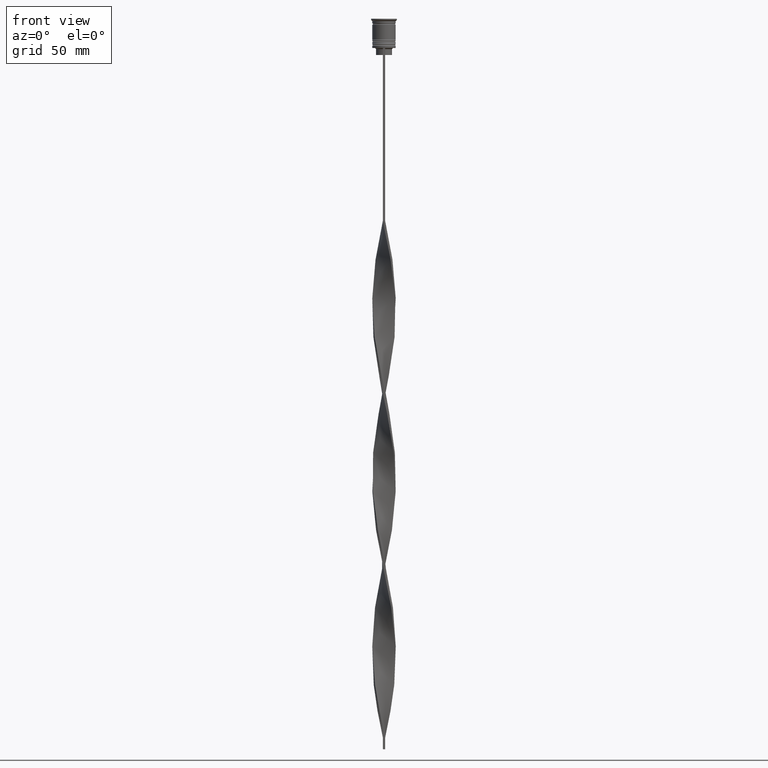
[diagram: clean part render]
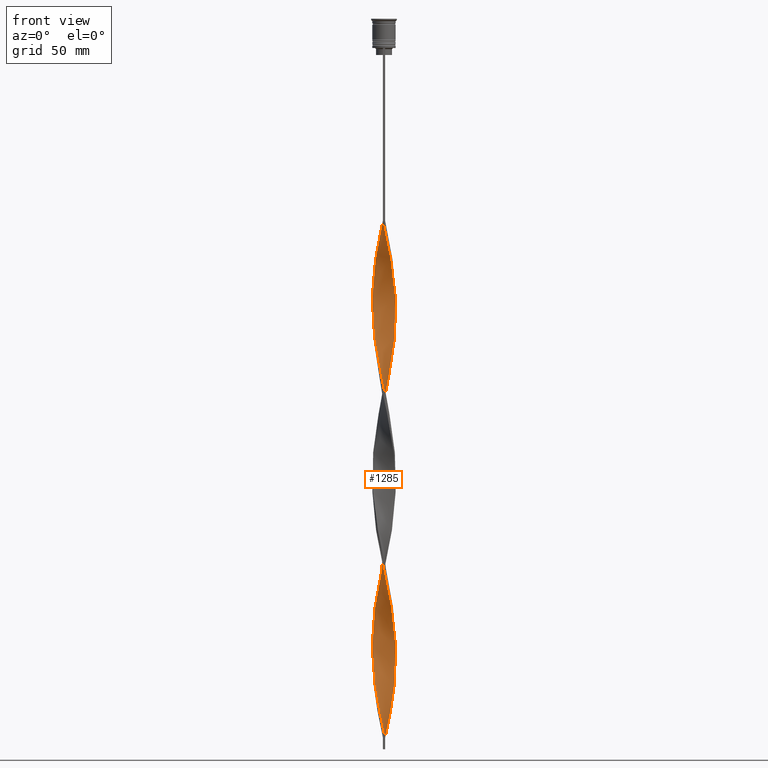
[diagram: same view with one face highlighted and labeled with its STEP entity id]
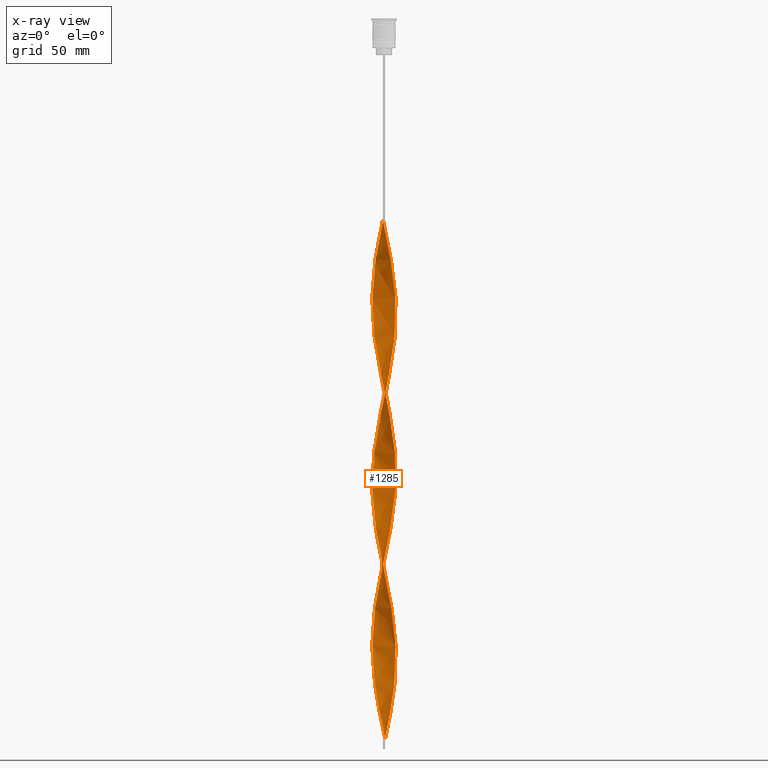
[diagram: x-ray of the same camera — body ghosted, the highlighted face saturated]
A machine part, front view. The second image highlights one B-rep face of the part: STEP entity #1285.
The next image is the same camera in x-ray: the body ghosted, the highlighted face saturated — about 0% of this face is hidden behind the body in this view.
In plain terms, the highlighted face is a freeform B-spline surface patch.
Its self-contained STEP definition (entity closure, byte-faithful):
#7 = CARTESIAN_POINT ( 'NONE',  ( -3.164131141785982759, 3.925766796198028263, -247.4035087719297792 ) ) ;
#9 = CARTESIAN_POINT ( 'NONE',  ( -3.339978767552784777, 3.754269813465272332, -179.5526315789473415 ) ) ;
#11 = CARTESIAN_POINT ( 'NONE',  ( 1.555904663195420978, 4.796095443128456814, -224.1403508771929580 ) ) ;
#25 = CARTESIAN_POINT ( 'NONE',  ( -4.724258586126254045, -1.712127568673661004, -276.4824561403509051 ) ) ;
#27 = CARTESIAN_POINT ( 'NONE',  ( 5.017136063310725369, -0.5017136063310729810, -123.3333333333333286 ) ) ;
#40 = CARTESIAN_POINT ( 'NONE',  ( -4.267384183849968871, 2.685666220508038382, -107.8245614035087527 ) ) ;
#49 = CARTESIAN_POINT ( 'NONE',  ( 4.866129521283638404, -1.320664341398920749, -266.7894736842105203 ) ) ;
#56 = CARTESIAN_POINT ( 'NONE',  ( -5.017136063310726257, -0.5017136063310723149, -123.3333333333333286 ) ) ;
#64 = CARTESIAN_POINT ( 'NONE',  ( 3.028891101531455021, -4.031028344680095188, -251.2807017543860013 ) ) ;
#74 = CARTESIAN_POINT ( 'NONE',  ( 0.5000000000000002220, 1.666666666666666075, -307.5000000000000000 ) ) ;
#76 = CARTESIAN_POINT ( 'NONE',  ( 2.474816539791243830, 4.393023322829788135, -150.4736842105263008 ) ) ;
#81 = CARTESIAN_POINT ( 'NONE',  ( 2.096405966873735149, 4.566736473900831150, -299.7456140350877263 ) ) ;
#104 = CARTESIAN_POINT ( 'NONE',  ( -0.9143118122538339554, 4.958568818774617526, -88.43859649122805422 ) ) ;
#106 = CARTESIAN_POINT ( 'NONE',  ( -2.324095515968829684, -4.474589461973509152, -293.9298245614035068 ) ) ;
#116 = CARTESIAN_POINT ( 'NONE',  ( 4.173650190928741566, 2.829136777236348266, -208.6315789473684106 ) ) ;
#118 = CARTESIAN_POINT ( 'NONE',  ( -2.819473840788614627, -4.159395059513905757, -222.2017543859649038 ) ) ;
#125 = CARTESIAN_POINT ( 'NONE',  ( 3.164131141785981871, 3.925766796198026487, -293.9298245614035068 ) ) ;
#132 = CARTESIAN_POINT ( 'NONE',  ( 3.339978767552791439, 3.754269813465269223, -214.4473684210526301 ) ) ;
#134 = CARTESIAN_POINT ( 'NONE',  ( -5.024212137769514364, 0.08539551914167310687, -198.9385964912280826 ) ) ;
#152 = CARTESIAN_POINT ( 'NONE',  ( 4.779714345601772330, -1.550590459937321031, -187.3070175438596436 ) ) ;
#178 = CARTESIAN_POINT ( 'NONE',  ( -3.465633818146536704, 3.638596190637135130, -249.3421052631578902 ) ) ;
#195 = CARTESIAN_POINT ( 'NONE',  ( 4.267384183849967982, -2.685666220508039714, -181.4912280701754241 ) ) ;
#197 = CARTESIAN_POINT ( 'NONE',  ( -4.378018920948800741, 2.466363786592377760, -187.3070175438596436 ) ) ;
#211 =( BOUNDED_CURVE ( )  B_SPLINE_CURVE ( 2, ( #545, #1825, #1462, #2756, #3100, #1506, #2801, #1192, #2472, #3740, #3319, #1740, #921, #3471, #1252, #3452, #1869, #2518, #2540, #27, #336, #608, #1851, #252, #268, #571, #2820, #2198, #3827, #1889, #3160, #2182, #4080, #3808, #290, #3786, #3518, #1232, #649, #1524, #905, #1567, #3125, #2860, #1212, #314, #2492, #4119, #9, #1541, #940, #2219, #2900, #3762, #3493, #588, #3142, #2838, #4095, #628, #1916, #3187, #1591, #2879, #1275, #2559, #962, #2243, #1938, #3205, #1613, #1301, #2584, #3851, #2154, #3433, #1375, #1956, #1052, #2685, #727, #3930, #378, #1352, #2033, #64, #3300, #3261, #2920, #3223, #1068, #397, #2602, #49, #985, #440, #2952, #1333, #3552, #1319, #1718, #2339, #1636, #2619, #2017, #412, #2262, #125, #1003, #3279, #81, #1656, #3912, #3576, #3867 ),
 .UNSPECIFIED., .F., .T. ) 
 B_SPLINE_CURVE_WITH_KNOTS ( ( 3, 2, 2, 2, 2, 2, 2, 2, 2, 2, 2, 2, 2, 2, 2, 2, 2, 2, 2, 2, 2, 2, 2, 2, 2, 2, 2, 2, 2, 2, 2, 2, 2, 2, 2, 2, 2, 2, 2, 2, 2, 2, 2, 2, 2, 2, 2, 2, 2, 2, 2, 2, 2, 2, 2, 2, 2, 3 ),
 ( 0.000000000000000000, 0.01315789473684210453, 0.02631578947368420907, 0.03947368421052631360, 0.05263157894736841813, 0.06578947368421052266, 0.07894736842105262720, 0.09210526315789473173, 0.1052631578947368363, 0.1184210526315789408, 0.1315789473684210453, 0.1447368421052631637, 0.1578947368421052544, 0.1710526315789473728, 0.1842105263157894635, 0.1973684210526315541, 0.2105263157894736725, 0.2236842105263157909, 0.2368421052631578816, 0.2500000000000000000, 0.2631578947368420907, 0.2763157894736842368, 0.2894736842105263275, 0.3026315789473684181, 0.3157894736842105088, 0.3289473684210526550, 0.3421052631578947456, 0.3552631578947368918, 0.3684210526315789269, 0.3815789473684210731, 0.3947368421052631082, 0.4078947368421052544, 0.4210526315789473450, 0.4342105263157895467, 0.4473684210526315819, 0.4605263157894736725, 0.4736842105263157632, 0.4868421052631579093, 0.5000000000000000000, 0.5131578947368421462, 0.5263157894736841813, 0.5394736842105263275, 0.5526315789473684736, 0.5657894736842105088, 0.5789473684210526550, 0.5921052631578946901, 0.6052631578947368363, 0.6184210526315789824, 0.6315789473684210176, 0.6447368421052631637, 0.6578947368421053099, 0.6710526315789473450, 0.6842105263157894912, 0.6973684210526315264, 0.7105263157894737835, 0.7236842105263158187, 0.7368421052631578538, 0.7500000000000000000 ),
 .UNSPECIFIED. ) 
 CURVE ( )  GEOMETRIC_REPRESENTATION_ITEM ( )  RATIONAL_B_SPLINE_CURVE ( ( 1.000000000000000000, 0.9965844930066698470, 1.000000000000000000, 0.9965844930066698470, 1.000000000000000000, 0.9965844930066698470, 1.000000000000000000, 0.9965844930066698470, 1.000000000000000000, 0.9965844930066698470, 1.000000000000000000, 0.9965844930066698470, 1.000000000000000000, 0.9965844930066698470, 1.000000000000000000, 0.9965844930066698470, 1.000000000000000000, 0.9965844930066698470, 1.000000000000000000, 0.9965844930066698470, 1.000000000000000000, 0.9965844930066698470, 1.000000000000000000, 0.9965844930066698470, 1.000000000000000000, 0.9965844930066698470, 1.000000000000000000, 0.9965844930066698470, 1.000000000000000000, 0.9965844930066698470, 1.000000000000000000, 0.9965844930066698470, 1.000000000000000000, 0.9965844930066698470, 1.000000000000000000, 0.9965844930066698470, 1.000000000000000000, 0.9965844930066698470, 1.000000000000000000, 0.9965844930066698470, 1.000000000000000000, 0.9965844930066698470, 1.000000000000000000, 0.9965844930066698470, 1.000000000000000000, 0.9965844930066698470, 1.000000000000000000, 0.9965844930066698470, 1.000000000000000000, 0.9965844930066698470, 1.000000000000000000, 0.9965844930066698470, 1.000000000000000000, 0.9965844930066698470, 1.000000000000000000, 0.9965844930066698470, 1.000000000000000000, 0.9965844930066698470, 1.000000000000000000, 0.9965844930066698470, 1.000000000000000000, 0.9965844930066698470, 1.000000000000000000, 0.9965844930066698470, 1.000000000000000000, 0.9965844930066698470, 1.000000000000000000, 0.9965844930066698470, 1.000000000000000000, 0.9965844930066698470, 1.000000000000000000, 0.9965844930066698470, 1.000000000000000000, 0.9965844930066698470, 1.000000000000000000, 0.9965844930066698470, 1.000000000000000000, 0.9965844930066698470, 1.000000000000000000, 0.9965844930066698470, 1.000000000000000000, 0.9965844930066698470, 1.000000000000000000, 0.9965844930066698470, 1.000000000000000000, 0.9965844930066698470, 1.000000000000000000, 0.9965844930066698470, 1.000000000000000000, 0.9965844930066698470, 1.000000000000000000, 0.9965844930066698470, 1.000000000000000000, 0.9965844930066698470, 1.000000000000000000, 0.9965844930066698470, 1.000000000000000000, 0.9965844930066698470, 1.000000000000000000, 0.9965844930066698470, 1.000000000000000000, 0.9965844930066698470, 1.000000000000000000, 0.9965844930066698470, 1.000000000000000000, 0.9965844930066698470, 1.000000000000000000, 0.9965844930066698470, 1.000000000000000000, 0.9965844930066698470, 1.000000000000000000, 0.9965844930066698470, 1.000000000000000000, 0.9965844930066698470, 1.000000000000000000 ) ) 
 REPRESENTATION_ITEM ( '' )  );
#217 = CARTESIAN_POINT ( 'NONE',  ( 4.866129521283638404, -1.320664341398920749, -266.7894736842105203 ) ) ;
#222 = CARTESIAN_POINT ( 'NONE',  ( -5.017136063310728034, -0.5017136063310723149, -123.3333333333333286 ) ) ;
#244 = CARTESIAN_POINT ( 'NONE',  ( -3.651066433574120751, -3.477511282250446811, -138.8421052631578902 ) ) ;
#252 = CARTESIAN_POINT ( 'NONE',  ( 4.908199934305798706, 1.154532037420934687, -131.0877192982456165 ) ) ;
#257 = CARTESIAN_POINT ( 'NONE',  ( 0.7452727871507823787, -4.986776443082572285, -239.6491228070175055 ) ) ;
#268 = CARTESIAN_POINT ( 'NONE',  ( 4.779714345601772330, 1.550590459937317256, -133.0263157894736992 ) ) ;
#272 = CARTESIAN_POINT ( 'NONE',  ( -0.5000000000000000000, -4.999999999999999112, -86.50000000000000000 ) ) ;
#275 = CARTESIAN_POINT ( 'NONE',  ( -0.5000000000000000000, -4.999999999999999112, -233.8333333333333428 ) ) ;
#290 = CARTESIAN_POINT ( 'NONE',  ( 2.096405966873735149, 4.566736473900831150, -152.4122807017543835 ) ) ;
#297 = CARTESIAN_POINT ( 'NONE',  ( 2.474816539791241610, -4.393023322829790800, -169.8596491228070136 ) ) ;
#304 = CARTESIAN_POINT ( 'NONE',  ( 3.339978767552786554, -3.754269813465270555, -253.2192982456140555 ) ) ;
#314 = CARTESIAN_POINT ( 'NONE',  ( -2.324095515968827019, 4.474589461973509152, -173.7368421052631220 ) ) ;
#315 = CARTESIAN_POINT ( 'NONE',  ( 0.08568818774616432377, -5.041431181225384250, -305.5614035087719458 ) ) ;
#319 = LINE ( 'NONE', #272, #4099 ) ;
#334 = CARTESIAN_POINT ( 'NONE',  ( -5.017136063310728034, -0.5017136063310723149, -270.6666666666665719 ) ) ;
#336 = CARTESIAN_POINT ( 'NONE',  ( 5.024212137769514364, -0.08539551914167359259, -125.2719298245613970 ) ) ;
#339 = CARTESIAN_POINT ( 'NONE',  ( 0.3297922997023119973, 5.014103812153979156, -229.9561403508772059 ) ) ;
#346 = CARTESIAN_POINT ( 'NONE',  ( -4.378018920948803405, -2.466363786592375540, -133.0263157894736992 ) ) ;
#352 = CARTESIAN_POINT ( 'NONE',  ( -3.651066433574120751, -3.477511282250446811, -286.1754385964911762 ) ) ;
#370 = CARTESIAN_POINT ( 'NONE',  ( -4.582387650968867021, -2.103590795948401038, -131.0877192982456165 ) ) ;
#376 = CARTESIAN_POINT ( 'NONE',  ( -3.339978767552788774, -3.754269813465271000, -288.1140350877192873 ) ) ;
#378 = CARTESIAN_POINT ( 'NONE',  ( 1.940000089582122778, -4.635342452550982095, -245.4649122807017534 ) ) ;
#381 = CARTESIAN_POINT ( 'NONE',  ( 0.5000000000000006661, 4.999999999999999112, -307.5000000000000000 ) ) ;
#397 = CARTESIAN_POINT ( 'NONE',  ( 4.582387650968865245, -2.103590795948401038, -262.9122807017543551 ) ) ;
#412 = CARTESIAN_POINT ( 'NONE',  ( 3.767136494507087541, 3.351425585076240221, -290.0526315789473415 ) ) ;
#420 = ORIENTED_EDGE ( 'NONE', *, *, #3487, .F. ) ;
#426 = CARTESIAN_POINT ( 'NONE',  ( 5.024212137769516140, 0.08539551914167110847, -195.0614035087719458 ) ) ;
#430 = CARTESIAN_POINT ( 'NONE',  ( -4.267384183849968871, -2.685666220508036606, -212.5087719298245759 ) ) ;
#438 = CARTESIAN_POINT ( 'NONE',  ( -1.940000089582124554, -4.635342452550982983, -295.8684210526315610 ) ) ;
#440 = CARTESIAN_POINT ( 'NONE',  ( 5.017136063310725369, -0.5017136063310729810, -270.6666666666666288 ) ) ;
#451 = CARTESIAN_POINT ( 'NONE',  ( 3.651066433574120751, 3.477511282250446367, -212.5087719298246043 ) ) ;
#464 = VERTEX_POINT ( 'NONE', #381 ) ;
#466 = CARTESIAN_POINT ( 'NONE',  ( 1.717995393956226025, -4.740449624971875053, -165.9824561403508199 ) ) ;
#468 = CARTESIAN_POINT ( 'NONE',  ( -1.717995393956227135, -4.740449624971873277, -228.0175438596490949 ) ) ;
#486 = CARTESIAN_POINT ( 'NONE',  ( 5.017136063310726257, 0.5017136063310717597, -197.0000000000000000 ) ) ;
#497 = CARTESIAN_POINT ( 'NONE',  ( -4.267384183849969759, 2.685666220508038382, -107.8245614035087385 ) ) ;
#513 = CARTESIAN_POINT ( 'NONE',  ( -0.08568818774616365763, 5.041431181225384250, -231.8947368421052602 ) ) ;
#520 = ORIENTED_EDGE ( 'NONE', *, *, #1810, .T. ) ;
#545 = CARTESIAN_POINT ( 'NONE',  ( -0.5000000000000000000, -4.999999999999999112, -86.50000000000000000 ) ) ;
#554 = CARTESIAN_POINT ( 'NONE',  ( 4.724258586126251380, -1.712127568673661226, -264.8508771929824661 ) ) ;
#571 = CARTESIAN_POINT ( 'NONE',  ( 4.651228756897744177, 1.946648882453701823, -134.9649122807017534 ) ) ;
#574 = CARTESIAN_POINT ( 'NONE',  ( -1.316153603105030712, 4.849509221873245401, -237.7105263157894797 ) ) ;
#588 = CARTESIAN_POINT ( 'NONE',  ( -4.866129521283638404, 1.320664341398923192, -193.1228070175438347 ) ) ;
#596 = CARTESIAN_POINT ( 'NONE',  ( 2.676493308750141686, -4.252808903326800838, -102.0087719298245474 ) ) ;
#601 = CARTESIAN_POINT ( 'NONE',  ( -1.940000089582124554, -4.635342452550982983, -148.5350877192982466 ) ) ;
#608 = CARTESIAN_POINT ( 'NONE',  ( 5.031288212228303358, 0.3309225680477255738, -127.2105263157894370 ) ) ;
#612 = CARTESIAN_POINT ( 'NONE',  ( -4.378018920948803405, -2.466363786592375540, -280.3596491228070136 ) ) ;
#614 = CARTESIAN_POINT ( 'NONE',  ( 3.339978767552786554, -3.754269813465270555, -105.8859649122806985 ) ) ;
#615 = CARTESIAN_POINT ( 'NONE',  ( 4.017260339178529094, 3.018545902792137969, -288.1140350877192873 ) ) ;
#628 = CARTESIAN_POINT ( 'NONE',  ( -5.031288212228303358, -0.3309225680477228537, -200.8771929824561369 ) ) ;
#632 = CARTESIAN_POINT ( 'NONE',  ( 0.9143118122538321790, -4.958568818774617526, -162.1052631578947683 ) ) ;
#640 = CARTESIAN_POINT ( 'NONE',  ( -2.324095515968829240, -4.474589461973509152, -146.5964912280701355 ) ) ;
#647 = CARTESIAN_POINT ( 'NONE',  ( -4.779714345601773218, 1.550590459937319476, -260.9736842105263577 ) ) ;
#649 = CARTESIAN_POINT ( 'NONE',  ( 0.5000000000000006661, 4.999999999999999112, -160.1666666666666856 ) ) ;
#653 = CARTESIAN_POINT ( 'NONE',  ( 4.173650190928741566, 2.829136777236347822, -208.6315789473684106 ) ) ;
#659 = CARTESIAN_POINT ( 'NONE',  ( -4.651228756897745953, 1.946648882453702933, -111.7017543859649038 ) ) ;
#661 = CARTESIAN_POINT ( 'NONE',  ( 5.024212137769514364, -0.08539551914167359259, -125.2719298245613970 ) ) ;
#677 = CARTESIAN_POINT ( 'NONE',  ( -1.717995393956227135, 4.740449624971874165, -92.31578947368420529 ) ) ;
#678 = CARTESIAN_POINT ( 'NONE',  ( 0.4999999999999993339, -5.000000000000000888, -307.5000000000000000 ) ) ;
#683 = CARTESIAN_POINT ( 'NONE',  ( -5.024212137769516140, -0.08539551914167284319, -268.7280701754385746 ) ) ;
#700 = CARTESIAN_POINT ( 'NONE',  ( -4.017260339178529094, 3.018545902792140634, -105.8859649122806985 ) ) ;
#703 = CARTESIAN_POINT ( 'NONE',  ( 4.651228756897745065, 1.946648882453701823, -134.9649122807017534 ) ) ;
#719 = CARTESIAN_POINT ( 'NONE',  ( -2.819473840788612851, 4.159395059513909310, -98.13157894736841058 ) ) ;
#727 = CARTESIAN_POINT ( 'NONE',  ( 1.150588725173099736, -4.891435943105514106, -241.5877192982455881 ) ) ;
#736 = CARTESIAN_POINT ( 'NONE',  ( 4.724258586126254933, 1.712127568673659450, -202.8157894736842195 ) ) ;
#755 = CARTESIAN_POINT ( 'NONE',  ( -3.767136494507089317, 3.351425585076241553, -251.2807017543860013 ) ) ;
#776 = CARTESIAN_POINT ( 'NONE',  ( 4.582387650968867021, 2.103590795948400594, -204.7543859649123021 ) ) ;
#778 = CARTESIAN_POINT ( 'NONE',  ( -4.017260339178530870, -3.018545902792136193, -214.4473684210526301 ) ) ;
#788 = CARTESIAN_POINT ( 'NONE',  ( 2.096405966873735149, 4.566736473900831150, -299.7456140350877263 ) ) ;
#797 = CARTESIAN_POINT ( 'NONE',  ( 3.164131141785981871, -3.925766796198029152, -173.7368421052631220 ) ) ;
#801 = CARTESIAN_POINT ( 'NONE',  ( -4.173650190928737125, 2.829136777236351818, -185.3684210526315894 ) ) ;
#806 = CARTESIAN_POINT ( 'NONE',  ( -5.024212137769516140, -0.08539551914167284319, -121.3947368421052460 ) ) ;
#818 = CARTESIAN_POINT ( 'NONE',  ( 0.7452727871507831559, 4.986776443082574062, -228.0175438596490949 ) ) ;
#822 = CARTESIAN_POINT ( 'NONE',  ( -3.028891101531454133, 4.031028344680096076, -177.6140350877192873 ) ) ;
#832 = CARTESIAN_POINT ( 'NONE',  ( -3.164131141785982759, 3.925766796198028263, -100.0701754385964932 ) ) ;
#848 = CARTESIAN_POINT ( 'NONE',  ( -4.779714345601771441, -1.550590459937318588, -206.6929824561403564 ) ) ;
#868 = CARTESIAN_POINT ( 'NONE',  ( 0.7452727871507823787, -4.986776443082572285, -92.31578947368419108 ) ) ;
#883 = CARTESIAN_POINT ( 'NONE',  ( 2.324095515968830128, 4.474589461973509152, -220.2631578947368212 ) ) ;
#885 = CARTESIAN_POINT ( 'NONE',  ( -0.7452727871507847102, -4.986776443082574062, -301.6842105263157805 ) ) ;
#895 = CARTESIAN_POINT ( 'NONE',  ( -4.908199934305800483, 1.154532037420935797, -115.5789473684210265 ) ) ;
#905 = CARTESIAN_POINT ( 'NONE',  ( -0.3297922997023075564, 5.014103812153978268, -164.0438596491227941 ) ) ;
#908 = CARTESIAN_POINT ( 'NONE',  ( -1.717995393956227135, 4.740449624971875053, -239.6491228070175055 ) ) ;
#911 = CARTESIAN_POINT ( 'NONE',  ( -2.324095515968829240, -4.474589461973509152, -293.9298245614035068 ) ) ;
#921 = CARTESIAN_POINT ( 'NONE',  ( 3.912358312251428938, -3.153324029743398427, -109.7631578947368354 ) ) ;
#924 = CARTESIAN_POINT ( 'NONE',  ( 4.969744073267052364, -0.7427273027343305190, -191.1842105263157805 ) ) ;
#927 = CARTESIAN_POINT ( 'NONE',  ( -3.028891101531455909, -4.031028344680096076, -290.0526315789473415 ) ) ;
#929 = CARTESIAN_POINT ( 'NONE',  ( 4.582387650968865245, -2.103590795948401038, -262.9122807017543551 ) ) ;
#940 = CARTESIAN_POINT ( 'NONE',  ( -3.912358312251428938, 3.153324029743398427, -183.4298245614035068 ) ) ;
#941 = CARTESIAN_POINT ( 'NONE',  ( 0.4999999999999993339, -5.000000000000000888, -307.5000000000000000 ) ) ;
#944 = CARTESIAN_POINT ( 'NONE',  ( 2.819473840788612407, -4.159395059513909310, -171.7982456140350962 ) ) ;
#962 = CARTESIAN_POINT ( 'NONE',  ( -4.017260339178530870, -3.018545902792136193, -214.4473684210526301 ) ) ;
#966 = CARTESIAN_POINT ( 'NONE',  ( 4.582387650968867021, 2.103590795948400594, -204.7543859649123306 ) ) ;
#972 = CARTESIAN_POINT ( 'NONE',  ( 3.651066433574118975, -3.477511282250445923, -107.8245614035087385 ) ) ;
#973 = CARTESIAN_POINT ( 'NONE',  ( -3.164131141785982759, 3.925766796198028263, -100.0701754385964932 ) ) ;
#974 = CARTESIAN_POINT ( 'NONE',  ( 5.031288212228303358, 0.3309225680477256293, -127.2105263157894370 ) ) ;
#981 = CARTESIAN_POINT ( 'NONE',  ( -3.912358312251430714, -3.153324029743398427, -284.2368421052631220 ) ) ;
#985 = CARTESIAN_POINT ( 'NONE',  ( 4.941632792297182775, -0.9111889738649967541, -268.7280701754385746 ) ) ;
#996 = CARTESIAN_POINT ( 'NONE',  ( 4.017260339178529094, 3.018545902792137969, -140.7807017543859445 ) ) ;
#997 = CARTESIAN_POINT ( 'NONE',  ( -2.324095515968829684, -4.474589461973509152, -146.5964912280701355 ) ) ;
#1001 = CARTESIAN_POINT ( 'NONE',  ( -2.474816539791242054, 4.393023322829790800, -243.5263157894736707 ) ) ;
#1003 = CARTESIAN_POINT ( 'NONE',  ( 2.819473840788612851, 4.159395059513907533, -295.8684210526315610 ) ) ;
#1016 = CARTESIAN_POINT ( 'NONE',  ( -0.9143118122538339554, 4.958568818774617526, -88.43859649122805422 ) ) ;
#1047 = CARTESIAN_POINT ( 'NONE',  ( 0.08568818774616784872, 5.041431181225382474, -162.1052631578947683 ) ) ;
#1052 = CARTESIAN_POINT ( 'NONE',  ( 0.3297922997023081670, -5.014103812153978268, -237.7105263157894797 ) ) ;
#1059 = CARTESIAN_POINT ( 'NONE',  ( -5.031288212228304246, 0.3309225680477266840, -266.7894736842105203 ) ) ;
#1068 = CARTESIAN_POINT ( 'NONE',  ( 4.378018920948801629, -2.466363786592375984, -260.9736842105263577 ) ) ;
#1075 = CARTESIAN_POINT ( 'NONE',  ( -0.9143118122538339554, 4.958568818774617526, -235.7719298245613970 ) ) ;
#1082 = CARTESIAN_POINT ( 'NONE',  ( -2.096405966873734705, 4.566736473900832927, -94.25438596491227372 ) ) ;
#1095 = CARTESIAN_POINT ( 'NONE',  ( 3.912358312251431602, 3.153324029743397539, -210.5701754385964932 ) ) ;
#1108 = CARTESIAN_POINT ( 'NONE',  ( 2.474816539791243830, 4.393023322829788135, -297.8070175438595584 ) ) ;
#1116 = CARTESIAN_POINT ( 'NONE',  ( -0.5000000000000000000, 5.000000000000000888, -233.8333333333333428 ) ) ;
#1123 = CARTESIAN_POINT ( 'NONE',  ( -4.651228756897745953, 1.946648882453703155, -111.7017543859649038 ) ) ;
#1134 = CARTESIAN_POINT ( 'NONE',  ( 4.378018920948803405, 2.466363786592376872, -206.6929824561403564 ) ) ;
#1153 = CARTESIAN_POINT ( 'NONE',  ( -1.555904663195419868, -4.796095443128455926, -297.8070175438595584 ) ) ;
#1180 = CARTESIAN_POINT ( 'NONE',  ( 4.173650190928738901, -2.829136777236350042, -259.0350877192983035 ) ) ;
#1192 = CARTESIAN_POINT ( 'NONE',  ( 2.324095515968828352, -4.474589461973507376, -100.0701754385964932 ) ) ;
#1196 = CARTESIAN_POINT ( 'NONE',  ( 0.7452727871507832669, 4.986776443082574062, -228.0175438596490949 ) ) ;
#1201 = CARTESIAN_POINT ( 'NONE',  ( 3.465633818146536260, 3.638596190637132466, -291.9912280701753957 ) ) ;
#1205 = CARTESIAN_POINT ( 'NONE',  ( -4.866129521283641068, -1.320664341398920527, -127.2105263157894370 ) ) ;
#1212 = CARTESIAN_POINT ( 'NONE',  ( -1.940000089582122333, 4.635342452550982095, -171.7982456140350962 ) ) ;
#1213 = CARTESIAN_POINT ( 'NONE',  ( 3.465633818146536704, -3.638596190637135130, -175.6754385964912046 ) ) ;
#1232 = CARTESIAN_POINT ( 'NONE',  ( 0.9143118122538356207, 4.958568818774615750, -158.2280701754386030 ) ) ;
#1234 = CARTESIAN_POINT ( 'NONE',  ( 3.767136494507088873, -3.351425585076243330, -177.6140350877192873 ) ) ;
#1240 = CARTESIAN_POINT ( 'NONE',  ( 3.912358312251428938, -3.153324029743398427, -109.7631578947368354 ) ) ;
#1241 = CARTESIAN_POINT ( 'NONE',  ( -0.9143118122538360648, -4.958568818774616638, -231.8947368421052886 ) ) ;
#1252 = CARTESIAN_POINT ( 'NONE',  ( 4.378018920948801629, -2.466363786592375984, -113.6403508771929864 ) ) ;
#1255 = CARTESIAN_POINT ( 'NONE',  ( 3.912358312251431602, 3.153324029743397539, -210.5701754385964932 ) ) ;
#1260 = CARTESIAN_POINT ( 'NONE',  ( 4.651228756897745065, 1.946648882453701823, -282.2982456140351246 ) ) ;
#1266 = CARTESIAN_POINT ( 'NONE',  ( -4.378018920948803405, -2.466363786592375540, -133.0263157894736992 ) ) ;
#1275 = CARTESIAN_POINT ( 'NONE',  ( -4.459306470373856968, -2.316157551480868104, -210.5701754385964932 ) ) ;
#1280 = CARTESIAN_POINT ( 'NONE',  ( 0.08568818774616432377, -5.041431181225384250, -158.2280701754386314 ) ) ;
#1285 = ADVANCED_FACE ( 'NONE', ( #2168 ), #1663, .T. ) ;
#1297 = CARTESIAN_POINT ( 'NONE',  ( -4.582387650968867021, -2.103590795948401038, -278.4210526315789593 ) ) ;
#1301 = CARTESIAN_POINT ( 'NONE',  ( -2.474816539791244274, -4.393023322829788135, -224.1403508771929864 ) ) ;
#1303 = CARTESIAN_POINT ( 'NONE',  ( -0.3297922997023091662, -5.014103812153980044, -303.6228070175438347 ) ) ;
#1311 = CARTESIAN_POINT ( 'NONE',  ( -2.474816539791242054, 4.393023322829790800, -96.19298245614034215 ) ) ;
#1319 = CARTESIAN_POINT ( 'NONE',  ( 4.908199934305798706, 1.154532037420934687, -278.4210526315789593 ) ) ;
#1327 = CARTESIAN_POINT ( 'NONE',  ( 3.465633818146536260, 3.638596190637132466, -144.6578947368421098 ) ) ;
#1333 = CARTESIAN_POINT ( 'NONE',  ( 5.031288212228303358, 0.3309225680477255738, -274.5438596491227941 ) ) ;
#1341 = CARTESIAN_POINT ( 'NONE',  ( -1.940000089582124554, -4.635342452550982983, -148.5350877192982466 ) ) ;
#1348 = CARTESIAN_POINT ( 'NONE',  ( 0.9143118122538355097, 4.958568818774616638, -305.5614035087719458 ) ) ;
#1352 = CARTESIAN_POINT ( 'NONE',  ( 2.324095515968828352, -4.474589461973507376, -247.4035087719297792 ) ) ;
#1375 = CARTESIAN_POINT ( 'NONE',  ( -0.5000000000000000000, -4.999999999999999112, -233.8333333333333428 ) ) ;
#1385 = CARTESIAN_POINT ( 'NONE',  ( -5.024212137769516140, -0.08539551914167284319, -268.7280701754385746 ) ) ;
#1387 = CARTESIAN_POINT ( 'NONE',  ( -2.474816539791244274, -4.393023322829788135, -224.1403508771929580 ) ) ;
#1403 = CARTESIAN_POINT ( 'NONE',  ( 4.017260339178527317, -3.018545902792142410, -179.5526315789473415 ) ) ;
#1424 = CARTESIAN_POINT ( 'NONE',  ( -0.7452727871507848212, -4.986776443082574062, -154.3508771929824661 ) ) ;
#1427 = CARTESIAN_POINT ( 'NONE',  ( 3.028891101531457686, 4.031028344680094300, -216.3859649122807127 ) ) ;
#1440 = CARTESIAN_POINT ( 'NONE',  ( 1.316153603105031156, 4.849509221873243625, -303.6228070175438347 ) ) ;
#1449 = CARTESIAN_POINT ( 'NONE',  ( 4.941632792297183663, 0.9111889738649967541, -198.9385964912280826 ) ) ;
#1462 = CARTESIAN_POINT ( 'NONE',  ( 0.3297922997023081670, -5.014103812153978268, -90.37719298245613686 ) ) ;
#1467 = CARTESIAN_POINT ( 'NONE',  ( 1.940000089582126774, 4.635342452550982095, -222.2017543859649038 ) ) ;
#1470 = CARTESIAN_POINT ( 'NONE',  ( -4.724258586126252268, 1.712127568673660560, -191.1842105263157805 ) ) ;
#1491 = CARTESIAN_POINT ( 'NONE',  ( -0.5000000000000000000, -4.999999999999999112, -86.50000000000000000 ) ) ;
#1501 = CARTESIAN_POINT ( 'NONE',  ( -2.474816539791242054, 4.393023322829790800, -96.19298245614034215 ) ) ;
#1506 = CARTESIAN_POINT ( 'NONE',  ( 1.555904663195416759, -4.796095443128455038, -96.19298245614034215 ) ) ;
#1524 = CARTESIAN_POINT ( 'NONE',  ( 0.08568818774616783485, 5.041431181225382474, -162.1052631578947398 ) ) ;
#1534 = CARTESIAN_POINT ( 'NONE',  ( -2.819473840788612851, 4.159395059513909310, -98.13157894736841058 ) ) ;
#1541 = CARTESIAN_POINT ( 'NONE',  ( -3.651066433574118086, 3.477511282250446367, -181.4912280701754241 ) ) ;
#1548 = CARTESIAN_POINT ( 'NONE',  ( 0.3297922997023081670, -5.014103812153978268, -237.7105263157894797 ) ) ;
#1567 = CARTESIAN_POINT ( 'NONE',  ( -0.7452727871507809354, 4.986776443082573174, -165.9824561403508199 ) ) ;
#1573 = CARTESIAN_POINT ( 'NONE',  ( 5.024212137769516140, 0.08539551914167110847, -195.0614035087719458 ) ) ;
#1579 = CARTESIAN_POINT ( 'NONE',  ( 4.582387650968865245, -2.103590795948401038, -115.5789473684210265 ) ) ;
#1580 = CARTESIAN_POINT ( 'NONE',  ( 5.031288212228303358, 0.3309225680477256293, -274.5438596491227941 ) ) ;
#1589 = CARTESIAN_POINT ( 'NONE',  ( -4.908199934305800483, 1.154532037420935797, -262.9122807017543551 ) ) ;
#1591 = CARTESIAN_POINT ( 'NONE',  ( -4.779714345601771441, -1.550590459937318588, -206.6929824561403564 ) ) ;
#1593 = CARTESIAN_POINT ( 'NONE',  ( 2.676493308750143907, 4.252808903326801726, -218.3245614035087954 ) ) ;
#1595 = DIRECTION ( 'NONE',  ( 0.000000000000000000, 1.000000000000000000, 0.000000000000000000 ) ) ;
#1604 = CARTESIAN_POINT ( 'NONE',  ( 4.941632792297182775, -0.9111889738649967541, -121.3947368421052460 ) ) ;
#1611 = CARTESIAN_POINT ( 'NONE',  ( -4.941632792297183663, -0.9111889738649963100, -272.6052631578947398 ) ) ;
#1613 = CARTESIAN_POINT ( 'NONE',  ( -2.819473840788614627, -4.159395059513905757, -222.2017543859649038 ) ) ;
#1614 = CARTESIAN_POINT ( 'NONE',  ( -0.7452727871507848212, -4.986776443082574062, -301.6842105263157805 ) ) ;
#1616 = CARTESIAN_POINT ( 'NONE',  ( 4.941632792297183663, 0.9111889738649967541, -198.9385964912280826 ) ) ;
#1636 = CARTESIAN_POINT ( 'NONE',  ( 4.459306470373856079, 2.316157551480868548, -284.2368421052631220 ) ) ;
#1646 = CARTESIAN_POINT ( 'NONE',  ( -4.173650190928740678, -2.829136777236350486, -134.9649122807017534 ) ) ;
#1648 = CARTESIAN_POINT ( 'NONE',  ( 4.779714345601772330, 1.550590459937317256, -133.0263157894736992 ) ) ;
#1653 = CARTESIAN_POINT ( 'NONE',  ( -3.028891101531455909, -4.031028344680096076, -290.0526315789473415 ) ) ;
#1656 = CARTESIAN_POINT ( 'NONE',  ( 1.717995393956228911, 4.740449624971872389, -301.6842105263157805 ) ) ;
#1663 =( BOUNDED_SURFACE ( )  B_SPLINE_SURFACE ( 1, 2, ( 
 ( #1491, #2458, #3775, #868, #3418, #3458, #1836, #3112, #596, #4109, #614, #972, #1240, #2528, #2250, #1579, #1896, #3172, #1604, #2658, #661, #974, #2254, #3216, #1648, #703, #1670, #3861, #996, #2271, #1327, #1968, #3547, #76, #2929, #1992, #3255, #2318, #2633, #1047, #3589, #2009, #3274, #1728, #3713, #2988, #4001, #822, #2696, #2105, #3958, #801, #197, #2374, #1470, #2724, #3689, #3649, #134, #2764, #3006, #3624, #848, #4018, #1793, #430, #778, #3940, #3326, #1711, #118, #1387, #3980, #468, #3025, #1241, #275, #2787, #1548, #257, #3173, #2529, #2124, #4129, #3133, #2505, #304, #1860, #2169, #1180, #3796, #929, #554, #217, #2808, #3395, #3459, #1580, #4065, #2205, #3479, #1260, #2459, #2826, #615, #1837, #1201, #2481, #2546, #1108, #788, #2978, #1440, #1348, #1715 ),
 ( #1691, #104, #2680, #2992, #1082, #1501, #1534, #832, #4071, #2795, #3072, #497, #3377, #1123, #4026, #895, #2444, #3401, #806, #222, #3052, #1205, #2484, #3986, #1266, #1844, #3119, #244, #3779, #3073, #3464, #997, #601, #1882, #2370, #1424, #2883, #1280, #2842, #632, #3165, #3744, #4102, #297, #944, #3497, #1213, #1234, #2822, #2521, #2562, #4081, #3790, #1873, #924, #2200, #1573, #3831, #1616, #1921, #2863, #966, #2498, #653, #1255, #3767, #3522, #3191, #1593, #883, #1941, #11, #3207, #1196, #339, #2476, #2161, #3439, #574, #908, #3682, #1001, #3221, #7, #4117, #2217, #3157, #1914, #3244, #2877, #647, #1589, #1936, #2557, #683, #334, #1611, #1975, #25, #1297, #2582, #3848, #981, #352, #376, #1653, #2933, #106, #438, #2300, #1980, #1614, #1303, #315, #941 ) ),
 .UNSPECIFIED., .F., .F., .F. ) 
 B_SPLINE_SURFACE_WITH_KNOTS ( ( 2, 2 ),
 ( 3, 2, 2, 2, 2, 2, 2, 2, 2, 2, 2, 2, 2, 2, 2, 2, 2, 2, 2, 2, 2, 2, 2, 2, 2, 2, 2, 2, 2, 2, 2, 2, 2, 2, 2, 2, 2, 2, 2, 2, 2, 2, 2, 2, 2, 2, 2, 2, 2, 2, 2, 2, 2, 2, 2, 2, 2, 3 ),
 ( 0.000000000000000000, 1.000000000000000000 ),
 ( 0.000000000000000000, 0.01315789473684210453, 0.02631578947368420907, 0.03947368421052631360, 0.05263157894736841813, 0.06578947368421052266, 0.07894736842105262720, 0.09210526315789473173, 0.1052631578947368363, 0.1184210526315789408, 0.1315789473684210453, 0.1447368421052631637, 0.1578947368421052544, 0.1710526315789473728, 0.1842105263157894635, 0.1973684210526315819, 0.2105263157894736725, 0.2236842105263157909, 0.2368421052631578816, 0.2500000000000000000, 0.2631578947368420907, 0.2763157894736842368, 0.2894736842105263275, 0.3026315789473684181, 0.3157894736842105088, 0.3289473684210526550, 0.3421052631578947456, 0.3552631578947368363, 0.3684210526315789269, 0.3815789473684210731, 0.3947368421052631637, 0.4078947368421052544, 0.4210526315789473450, 0.4342105263157894912, 0.4473684210526315819, 0.4605263157894736725, 0.4736842105263157632, 0.4868421052631579093, 0.5000000000000000000, 0.5131578947368421462, 0.5263157894736841813, 0.5394736842105263275, 0.5526315789473684736, 0.5657894736842105088, 0.5789473684210526550, 0.5921052631578946901, 0.6052631578947368363, 0.6184210526315789824, 0.6315789473684210176, 0.6447368421052631637, 0.6578947368421053099, 0.6710526315789473450, 0.6842105263157894912, 0.6973684210526315264, 0.7105263157894736725, 0.7236842105263158187, 0.7368421052631578538, 0.7500000000000000000 ),
 .UNSPECIFIED. ) 
 GEOMETRIC_REPRESENTATION_ITEM ( )  RATIONAL_B_SPLINE_SURFACE ( (
 ( 1.000000000000000000, 0.9965844930066698470, 1.000000000000000000, 0.9965844930066698470, 1.000000000000000000, 0.9965844930066698470, 1.000000000000000000, 0.9965844930066698470, 1.000000000000000000, 0.9965844930066698470, 1.000000000000000000, 0.9965844930066698470, 1.000000000000000000, 0.9965844930066698470, 1.000000000000000000, 0.9965844930066698470, 1.000000000000000000, 0.9965844930066698470, 1.000000000000000000, 0.9965844930066698470, 1.000000000000000000, 0.9965844930066698470, 1.000000000000000000, 0.9965844930066698470, 1.000000000000000000, 0.9965844930066698470, 1.000000000000000000, 0.9965844930066698470, 1.000000000000000000, 0.9965844930066698470, 1.000000000000000000, 0.9965844930066698470, 1.000000000000000000, 0.9965844930066698470, 1.000000000000000000, 0.9965844930066698470, 1.000000000000000000, 0.9965844930066698470, 1.000000000000000000, 0.9965844930066698470, 1.000000000000000000, 0.9965844930066698470, 1.000000000000000000, 0.9965844930066698470, 1.000000000000000000, 0.9965844930066698470, 1.000000000000000000, 0.9965844930066698470, 1.000000000000000000, 0.9965844930066698470, 1.000000000000000000, 0.9965844930066698470, 1.000000000000000000, 0.9965844930066698470, 1.000000000000000000, 0.9965844930066698470, 1.000000000000000000, 0.9965844930066698470, 1.000000000000000000, 0.9965844930066698470, 1.000000000000000000, 0.9965844930066698470, 1.000000000000000000, 0.9965844930066698470, 1.000000000000000000, 0.9965844930066698470, 1.000000000000000000, 0.9965844930066698470, 1.000000000000000000, 0.9965844930066698470, 1.000000000000000000, 0.9965844930066698470, 1.000000000000000000, 0.9965844930066698470, 1.000000000000000000, 0.9965844930066698470, 1.000000000000000000, 0.9965844930066698470, 1.000000000000000000, 0.9965844930066698470, 1.000000000000000000, 0.9965844930066698470, 1.000000000000000000, 0.9965844930066698470, 1.000000000000000000, 0.9965844930066698470, 1.000000000000000000, 0.9965844930066698470, 1.000000000000000000, 0.9965844930066698470, 1.000000000000000000, 0.9965844930066698470, 1.000000000000000000, 0.9965844930066698470, 1.000000000000000000, 0.9965844930066698470, 1.000000000000000000, 0.9965844930066698470, 1.000000000000000000, 0.9965844930066698470, 1.000000000000000000, 0.9965844930066698470, 1.000000000000000000, 0.9965844930066698470, 1.000000000000000000, 0.9965844930066698470, 1.000000000000000000, 0.9965844930066698470, 1.000000000000000000, 0.9965844930066698470, 1.000000000000000000, 0.9965844930066698470, 1.000000000000000000, 0.9965844930066698470, 1.000000000000000000),
 ( 1.000000000000000000, 0.9965844930066698470, 1.000000000000000000, 0.9965844930066698470, 1.000000000000000000, 0.9965844930066698470, 1.000000000000000000, 0.9965844930066698470, 1.000000000000000000, 0.9965844930066698470, 1.000000000000000000, 0.9965844930066698470, 1.000000000000000000, 0.9965844930066698470, 1.000000000000000000, 0.9965844930066698470, 1.000000000000000000, 0.9965844930066698470, 1.000000000000000000, 0.9965844930066698470, 1.000000000000000000, 0.9965844930066698470, 1.000000000000000000, 0.9965844930066698470, 1.000000000000000000, 0.9965844930066698470, 1.000000000000000000, 0.9965844930066698470, 1.000000000000000000, 0.9965844930066698470, 1.000000000000000000, 0.9965844930066698470, 1.000000000000000000, 0.9965844930066698470, 1.000000000000000000, 0.9965844930066698470, 1.000000000000000000, 0.9965844930066698470, 1.000000000000000000, 0.9965844930066698470, 1.000000000000000000, 0.9965844930066698470, 1.000000000000000000, 0.9965844930066698470, 1.000000000000000000, 0.9965844930066698470, 1.000000000000000000, 0.9965844930066698470, 1.000000000000000000, 0.9965844930066698470, 1.000000000000000000, 0.9965844930066698470, 1.000000000000000000, 0.9965844930066698470, 1.000000000000000000, 0.9965844930066698470, 1.000000000000000000, 0.9965844930066698470, 1.000000000000000000, 0.9965844930066698470, 1.000000000000000000, 0.9965844930066698470, 1.000000000000000000, 0.9965844930066698470, 1.000000000000000000, 0.9965844930066698470, 1.000000000000000000, 0.9965844930066698470, 1.000000000000000000, 0.9965844930066698470, 1.000000000000000000, 0.9965844930066698470, 1.000000000000000000, 0.9965844930066698470, 1.000000000000000000, 0.9965844930066698470, 1.000000000000000000, 0.9965844930066698470, 1.000000000000000000, 0.9965844930066698470, 1.000000000000000000, 0.9965844930066698470, 1.000000000000000000, 0.9965844930066698470, 1.000000000000000000, 0.9965844930066698470, 1.000000000000000000, 0.9965844930066698470, 1.000000000000000000, 0.9965844930066698470, 1.000000000000000000, 0.9965844930066698470, 1.000000000000000000, 0.9965844930066698470, 1.000000000000000000, 0.9965844930066698470, 1.000000000000000000, 0.9965844930066698470, 1.000000000000000000, 0.9965844930066698470, 1.000000000000000000, 0.9965844930066698470, 1.000000000000000000, 0.9965844930066698470, 1.000000000000000000, 0.9965844930066698470, 1.000000000000000000, 0.9965844930066698470, 1.000000000000000000, 0.9965844930066698470, 1.000000000000000000, 0.9965844930066698470, 1.000000000000000000, 0.9965844930066698470, 1.000000000000000000) ) ) 
 REPRESENTATION_ITEM ( '' )  SURFACE ( )  );
#1667 = CARTESIAN_POINT ( 'NONE',  ( -3.339978767552788774, -3.754269813465271000, -140.7807017543859445 ) ) ;
#1670 = CARTESIAN_POINT ( 'NONE',  ( 4.459306470373856079, 2.316157551480868548, -136.9035087719298076 ) ) ;
#1679 = EDGE_LOOP ( 'NONE', ( #520, #3535, #420, #3111 ) ) ;
#1691 = CARTESIAN_POINT ( 'NONE',  ( -0.5000000000000000000, 5.000000000000000888, -86.50000000000000000 ) ) ;
#1709 = CARTESIAN_POINT ( 'NONE',  ( 2.819473840788612407, -4.159395059513909310, -171.7982456140350962 ) ) ;
#1711 = CARTESIAN_POINT ( 'NONE',  ( -3.164131141785982315, -3.925766796198026487, -220.2631578947368212 ) ) ;
#1715 = CARTESIAN_POINT ( 'NONE',  ( 0.5000000000000006661, 4.999999999999999112, -307.5000000000000000 ) ) ;
#1718 = CARTESIAN_POINT ( 'NONE',  ( 4.779714345601772330, 1.550590459937317256, -280.3596491228070136 ) ) ;
#1726 = CARTESIAN_POINT ( 'NONE',  ( -4.267384183849968871, 2.685666220508038382, -255.1578947368421382 ) ) ;
#1728 = CARTESIAN_POINT ( 'NONE',  ( -1.555904663195415649, 4.796095443128455926, -169.8596491228070136 ) ) ;
#1740 = CARTESIAN_POINT ( 'NONE',  ( 3.651066433574118975, -3.477511282250445923, -107.8245614035087527 ) ) ;
#1745 = CARTESIAN_POINT ( 'NONE',  ( 3.465633818146536704, -3.638596190637135130, -175.6754385964912046 ) ) ;
#1755 = CARTESIAN_POINT ( 'NONE',  ( -0.5000000000000000000, 5.000000000000000888, -86.50000000000000000 ) ) ;
#1770 = CARTESIAN_POINT ( 'NONE',  ( -2.096405966873734705, 4.566736473900832927, -241.5877192982455881 ) ) ;
#1791 = CARTESIAN_POINT ( 'NONE',  ( -1.316153603105030712, 4.849509221873245401, -237.7105263157894797 ) ) ;
#1793 = CARTESIAN_POINT ( 'NONE',  ( -4.459306470373856968, -2.316157551480868104, -210.5701754385964932 ) ) ;
#1810 = EDGE_CURVE ( 'NONE', #3141, #3865, #319, .T. ) ;
#1825 = CARTESIAN_POINT ( 'NONE',  ( -0.08568818774616615563, -5.041431181225382474, -88.43859649122805422 ) ) ;
#1836 = CARTESIAN_POINT ( 'NONE',  ( 1.940000089582122778, -4.635342452550982095, -98.13157894736841058 ) ) ;
#1837 = CARTESIAN_POINT ( 'NONE',  ( 3.767136494507087541, 3.351425585076240665, -290.0526315789473415 ) ) ;
#1844 = CARTESIAN_POINT ( 'NONE',  ( -4.173650190928740678, -2.829136777236350486, -134.9649122807017534 ) ) ;
#1851 = CARTESIAN_POINT ( 'NONE',  ( 4.969744073267050588, 0.7427273027343300749, -129.1491228070175339 ) ) ;
#1860 = CARTESIAN_POINT ( 'NONE',  ( 3.651066433574118975, -3.477511282250445923, -255.1578947368421666 ) ) ;
#1869 = CARTESIAN_POINT ( 'NONE',  ( 4.724258586126251380, -1.712127568673661226, -117.5175438596491233 ) ) ;
#1873 = CARTESIAN_POINT ( 'NONE',  ( 4.908199934305800483, -1.154532037420936241, -189.2456140350877263 ) ) ;
#1876 = CARTESIAN_POINT ( 'NONE',  ( 0.08568818774616430989, -5.041431181225384250, -305.5614035087719458 ) ) ;
#1882 = CARTESIAN_POINT ( 'NONE',  ( -1.555904663195420090, -4.796095443128456814, -150.4736842105263008 ) ) ;
#1889 = CARTESIAN_POINT ( 'NONE',  ( 3.767136494507087541, 3.351425585076240221, -142.7192982456140271 ) ) ;
#1896 = CARTESIAN_POINT ( 'NONE',  ( 4.724258586126251380, -1.712127568673661226, -117.5175438596491233 ) ) ;
#1914 = CARTESIAN_POINT ( 'NONE',  ( -4.267384183849969759, 2.685666220508038382, -255.1578947368421666 ) ) ;
#1916 = CARTESIAN_POINT ( 'NONE',  ( -4.969744073267051476, -0.7427273027343286316, -202.8157894736842195 ) ) ;
#1921 = CARTESIAN_POINT ( 'NONE',  ( 4.866129521283641068, 1.320664341398917641, -200.8771929824561084 ) ) ;
#1928 = CARTESIAN_POINT ( 'NONE',  ( -1.150588725173101068, -4.891435943105515882, -152.4122807017543835 ) ) ;
#1936 = CARTESIAN_POINT ( 'NONE',  ( -4.969744073267053253, 0.7427273027343311851, -264.8508771929824661 ) ) ;
#1938 = CARTESIAN_POINT ( 'NONE',  ( -3.465633818146536704, -3.638596190637132466, -218.3245614035087954 ) ) ;
#1941 = CARTESIAN_POINT ( 'NONE',  ( 1.940000089582126774, 4.635342452550982095, -222.2017543859649038 ) ) ;
#1956 = CARTESIAN_POINT ( 'NONE',  ( -0.08568818774616615563, -5.041431181225382474, -235.7719298245613970 ) ) ;
#1964 = CARTESIAN_POINT ( 'NONE',  ( -5.024212137769516140, -0.08539551914167284319, -121.3947368421052460 ) ) ;
#1968 = CARTESIAN_POINT ( 'NONE',  ( 3.164131141785981871, 3.925766796198026487, -146.5964912280701355 ) ) ;
#1975 = CARTESIAN_POINT ( 'NONE',  ( -4.866129521283641068, -1.320664341398920527, -274.5438596491227941 ) ) ;
#1980 = CARTESIAN_POINT ( 'NONE',  ( -1.150588725173101068, -4.891435943105515882, -299.7456140350877263 ) ) ;
#1990 = CARTESIAN_POINT ( 'NONE',  ( -4.969744073267053253, 0.7427273027343311851, -117.5175438596491233 ) ) ;
#1992 = CARTESIAN_POINT ( 'NONE',  ( 1.717995393956228911, 4.740449624971873277, -154.3508771929824661 ) ) ;
#2009 = CARTESIAN_POINT ( 'NONE',  ( -0.7452727871507810464, 4.986776443082573174, -165.9824561403508199 ) ) ;
#2017 = CARTESIAN_POINT ( 'NONE',  ( 4.017260339178529094, 3.018545902792137969, -288.1140350877192873 ) ) ;
#2024 = CARTESIAN_POINT ( 'NONE',  ( -4.969744073267053253, 0.7427273027343311851, -264.8508771929824661 ) ) ;
#2033 = CARTESIAN_POINT ( 'NONE',  ( 2.676493308750141686, -4.252808903326800838, -249.3421052631578902 ) ) ;
#2044 = CARTESIAN_POINT ( 'NONE',  ( -4.866129521283641068, -1.320664341398920527, -274.5438596491227941 ) ) ;
#2061 = CARTESIAN_POINT ( 'NONE',  ( 4.651228756897744177, -1.946648882453705376, -185.3684210526315610 ) ) ;
#2078 = CARTESIAN_POINT ( 'NONE',  ( -1.717995393956227135, 4.740449624971874165, -239.6491228070175339 ) ) ;
#2103 = CARTESIAN_POINT ( 'NONE',  ( 4.908199934305800483, -1.154532037420936463, -189.2456140350877263 ) ) ;
#2105 = CARTESIAN_POINT ( 'NONE',  ( -3.651066433574118086, 3.477511282250446367, -181.4912280701754241 ) ) ;
#2124 = CARTESIAN_POINT ( 'NONE',  ( 1.940000089582122778, -4.635342452550982095, -245.4649122807017534 ) ) ;
#2141 = CARTESIAN_POINT ( 'NONE',  ( -2.676493308750143463, -4.252808903326802614, -291.9912280701753957 ) ) ;
#2154 = CARTESIAN_POINT ( 'NONE',  ( -1.316153603105033820, -4.849509221873242737, -229.9561403508772059 ) ) ;
#2161 = CARTESIAN_POINT ( 'NONE',  ( -0.5000000000000000000, 5.000000000000000888, -233.8333333333333428 ) ) ;
#2168 = FACE_OUTER_BOUND ( 'NONE', #1679, .T. ) ;
#2169 = CARTESIAN_POINT ( 'NONE',  ( 3.912358312251428938, -3.153324029743398427, -257.0964912280701924 ) ) ;
#2182 = CARTESIAN_POINT ( 'NONE',  ( 3.164131141785981871, 3.925766796198026487, -146.5964912280701355 ) ) ;
#2198 = CARTESIAN_POINT ( 'NONE',  ( 4.267384183849967094, 2.685666220508037494, -138.8421052631578902 ) ) ;
#2200 = CARTESIAN_POINT ( 'NONE',  ( 5.031288212228304246, -0.3309225680477295151, -193.1228070175438063 ) ) ;
#2205 = CARTESIAN_POINT ( 'NONE',  ( 4.908199934305798706, 1.154532037420934687, -278.4210526315789593 ) ) ;
#2209 = EDGE_CURVE ( 'NONE', #3141, #464, #211, .T. ) ;
#2217 = CARTESIAN_POINT ( 'NONE',  ( -3.767136494507089317, 3.351425585076241997, -251.2807017543860013 ) ) ;
#2219 = CARTESIAN_POINT ( 'NONE',  ( -4.173650190928737125, 2.829136777236352263, -185.3684210526315610 ) ) ;
#2228 = CARTESIAN_POINT ( 'NONE',  ( -4.724258586126254045, -1.712127568673661004, -129.1491228070175339 ) ) ;
#2243 = CARTESIAN_POINT ( 'NONE',  ( -3.767136494507089761, -3.351425585076238001, -216.3859649122807127 ) ) ;
#2250 = CARTESIAN_POINT ( 'NONE',  ( 4.378018920948801629, -2.466363786592375984, -113.6403508771929864 ) ) ;
#2252 = CARTESIAN_POINT ( 'NONE',  ( -3.465633818146536704, 3.638596190637135130, -102.0087719298245474 ) ) ;
#2254 = CARTESIAN_POINT ( 'NONE',  ( 4.969744073267050588, 0.7427273027343300749, -129.1491228070175339 ) ) ;
#2262 = CARTESIAN_POINT ( 'NONE',  ( 3.465633818146536260, 3.638596190637132466, -291.9912280701753957 ) ) ;
#2271 = CARTESIAN_POINT ( 'NONE',  ( 3.767136494507087541, 3.351425585076240665, -142.7192982456140271 ) ) ;
#2290 = CARTESIAN_POINT ( 'NONE',  ( -4.779714345601773218, 1.550590459937319476, -113.6403508771929864 ) ) ;
#2300 = CARTESIAN_POINT ( 'NONE',  ( -1.555904663195420090, -4.796095443128456814, -297.8070175438595584 ) ) ;
#2316 = CARTESIAN_POINT ( 'NONE',  ( -3.912358312251430714, -3.153324029743398427, -136.9035087719298076 ) ) ;
#2318 = CARTESIAN_POINT ( 'NONE',  ( 0.9143118122538355097, 4.958568818774616638, -158.2280701754386314 ) ) ;
#2330 = CARTESIAN_POINT ( 'NONE',  ( 0.08568818774616430989, -5.041431181225384250, -158.2280701754386030 ) ) ;
#2331 = CARTESIAN_POINT ( 'NONE',  ( 0.4999999999999993339, -5.000000000000000888, -307.5000000000000000 ) ) ;
#2339 = CARTESIAN_POINT ( 'NONE',  ( 4.651228756897744177, 1.946648882453701823, -282.2982456140351246 ) ) ;
#2340 = EDGE_CURVE ( 'NONE', #3865, #3580, #3635, .T. ) ;
#2349 = CARTESIAN_POINT ( 'NONE',  ( 0.3297922997023119973, 5.014103812153979156, -229.9561403508772059 ) ) ;
#2370 = CARTESIAN_POINT ( 'NONE',  ( -1.150588725173101068, -4.891435943105515882, -152.4122807017543835 ) ) ;
#2372 = CARTESIAN_POINT ( 'NONE',  ( 4.459306470373856968, -2.316157551480870769, -183.4298245614035068 ) ) ;
#2374 = CARTESIAN_POINT ( 'NONE',  ( -4.582387650968865245, 2.103590795948401482, -189.2456140350877263 ) ) ;
#2390 = CARTESIAN_POINT ( 'NONE',  ( -2.474816539791242054, 4.393023322829790800, -243.5263157894736707 ) ) ;
#2411 = CARTESIAN_POINT ( 'NONE',  ( -4.779714345601773218, 1.550590459937319476, -260.9736842105263577 ) ) ;
#2442 = CARTESIAN_POINT ( 'NONE',  ( -0.5000000000000000000, -4.999999999999999112, -86.50000000000000000 ) ) ;
#2444 = CARTESIAN_POINT ( 'NONE',  ( -4.969744073267053253, 0.7427273027343311851, -117.5175438596491233 ) ) ;
#2458 = CARTESIAN_POINT ( 'NONE',  ( -0.08568818774616615563, -5.041431181225382474, -88.43859649122805422 ) ) ;
#2459 = CARTESIAN_POINT ( 'NONE',  ( 4.459306470373856079, 2.316157551480868548, -284.2368421052631220 ) ) ;
#2472 = CARTESIAN_POINT ( 'NONE',  ( 2.676493308750141686, -4.252808903326800838, -102.0087719298245474 ) ) ;
#2476 = CARTESIAN_POINT ( 'NONE',  ( -0.08568818774616367151, 5.041431181225384250, -231.8947368421052886 ) ) ;
#2481 = CARTESIAN_POINT ( 'NONE',  ( 3.164131141785981871, 3.925766796198026487, -293.9298245614035068 ) ) ;
#2484 = CARTESIAN_POINT ( 'NONE',  ( -4.724258586126254045, -1.712127568673661004, -129.1491228070175339 ) ) ;
#2492 = CARTESIAN_POINT ( 'NONE',  ( -2.676493308750141686, 4.252808903326801726, -175.6754385964912046 ) ) ;
#2498 = CARTESIAN_POINT ( 'NONE',  ( 4.378018920948803405, 2.466363786592376872, -206.6929824561403564 ) ) ;
#2500 = CARTESIAN_POINT ( 'NONE',  ( -3.912358312251430714, -3.153324029743398427, -284.2368421052631220 ) ) ;
#2505 = CARTESIAN_POINT ( 'NONE',  ( 3.028891101531455021, -4.031028344680095188, -251.2807017543860013 ) ) ;
#2518 = CARTESIAN_POINT ( 'NONE',  ( 4.866129521283638404, -1.320664341398920749, -119.4561403508771917 ) ) ;
#2521 = CARTESIAN_POINT ( 'NONE',  ( 4.267384183849968871, -2.685666220508039714, -181.4912280701754241 ) ) ;
#2528 = CARTESIAN_POINT ( 'NONE',  ( 4.173650190928738901, -2.829136777236350042, -111.7017543859649038 ) ) ;
#2529 = CARTESIAN_POINT ( 'NONE',  ( 1.555904663195416537, -4.796095443128455926, -243.5263157894736707 ) ) ;
#2540 = CARTESIAN_POINT ( 'NONE',  ( 4.941632792297182775, -0.9111889738649967541, -121.3947368421052460 ) ) ;
#2546 = CARTESIAN_POINT ( 'NONE',  ( 2.819473840788612851, 4.159395059513907533, -295.8684210526315610 ) ) ;
#2557 = CARTESIAN_POINT ( 'NONE',  ( -5.031288212228304246, 0.3309225680477266840, -266.7894736842105203 ) ) ;
#2559 = CARTESIAN_POINT ( 'NONE',  ( -4.267384183849967982, -2.685666220508036606, -212.5087719298246043 ) ) ;
#2562 = CARTESIAN_POINT ( 'NONE',  ( 4.459306470373856968, -2.316157551480870769, -183.4298245614035068 ) ) ;
#2569 = CARTESIAN_POINT ( 'NONE',  ( 0.5000000000000006661, 4.999999999999999112, -307.5000000000000000 ) ) ;
#2582 = CARTESIAN_POINT ( 'NONE',  ( -4.378018920948803405, -2.466363786592375540, -280.3596491228070136 ) ) ;
#2584 = CARTESIAN_POINT ( 'NONE',  ( -2.096405966873735593, -4.566736473900831150, -226.0789473684210407 ) ) ;
#2602 = CARTESIAN_POINT ( 'NONE',  ( 4.724258586126251380, -1.712127568673661226, -264.8508771929824661 ) ) ;
#2619 = CARTESIAN_POINT ( 'NONE',  ( 4.267384183849967094, 2.685666220508037494, -286.1754385964911762 ) ) ;
#2630 = CARTESIAN_POINT ( 'NONE',  ( -4.459306470373856968, 2.316157551480870769, -109.7631578947368354 ) ) ;
#2633 = CARTESIAN_POINT ( 'NONE',  ( 0.5000000000000006661, 4.999999999999999112, -160.1666666666666856 ) ) ;
#2658 = CARTESIAN_POINT ( 'NONE',  ( 5.017136063310725369, -0.5017136063310729810, -123.3333333333333286 ) ) ;
#2674 = CARTESIAN_POINT ( 'NONE',  ( -5.017136063310726257, -0.5017136063310723149, -270.6666666666666288 ) ) ;
#2680 = CARTESIAN_POINT ( 'NONE',  ( -1.316153603105030712, 4.849509221873245401, -90.37719298245613686 ) ) ;
#2685 = CARTESIAN_POINT ( 'NONE',  ( 0.7452727871507823787, -4.986776443082572285, -239.6491228070175339 ) ) ;
#2693 = CARTESIAN_POINT ( 'NONE',  ( 0.9143118122538322901, -4.958568818774617526, -162.1052631578947398 ) ) ;
#2696 = CARTESIAN_POINT ( 'NONE',  ( -3.339978767552784777, 3.754269813465272332, -179.5526315789473415 ) ) ;
#2721 = CARTESIAN_POINT ( 'NONE',  ( 2.676493308750143907, 4.252808903326801726, -218.3245614035087954 ) ) ;
#2724 = CARTESIAN_POINT ( 'NONE',  ( -4.866129521283638404, 1.320664341398923192, -193.1228070175438063 ) ) ;
#2744 = CARTESIAN_POINT ( 'NONE',  ( -4.459306470373856968, 2.316157551480870769, -257.0964912280701924 ) ) ;
#2756 = CARTESIAN_POINT ( 'NONE',  ( 0.7452727871507823787, -4.986776443082572285, -92.31578947368420529 ) ) ;
#2761 = CARTESIAN_POINT ( 'NONE',  ( -4.908199934305800483, 1.154532037420935797, -262.9122807017543551 ) ) ;
#2764 = CARTESIAN_POINT ( 'NONE',  ( -5.031288212228303358, -0.3309225680477228537, -200.8771929824561084 ) ) ;
#2787 = CARTESIAN_POINT ( 'NONE',  ( -0.08568818774616615563, -5.041431181225382474, -235.7719298245614254 ) ) ;
#2795 = CARTESIAN_POINT ( 'NONE',  ( -3.767136494507089317, 3.351425585076241997, -103.9473684210526301 ) ) ;
#2801 = CARTESIAN_POINT ( 'NONE',  ( 1.940000089582122778, -4.635342452550982095, -98.13157894736841058 ) ) ;
#2808 = CARTESIAN_POINT ( 'NONE',  ( 4.941632792297182775, -0.9111889738649967541, -268.7280701754385746 ) ) ;
#2820 = CARTESIAN_POINT ( 'NONE',  ( 4.459306470373856079, 2.316157551480868548, -136.9035087719298076 ) ) ;
#2822 = CARTESIAN_POINT ( 'NONE',  ( 4.017260339178527317, -3.018545902792142410, -179.5526315789473415 ) ) ;
#2826 = CARTESIAN_POINT ( 'NONE',  ( 4.267384183849967982, 2.685666220508037494, -286.1754385964911762 ) ) ;
#2838 = CARTESIAN_POINT ( 'NONE',  ( -5.017136063310725369, 0.5017136063310736471, -197.0000000000000000 ) ) ;
#2842 = CARTESIAN_POINT ( 'NONE',  ( 0.4999999999999993339, -5.000000000000000888, -160.1666666666666856 ) ) ;
#2860 = CARTESIAN_POINT ( 'NONE',  ( -1.555904663195415871, 4.796095443128455038, -169.8596491228070136 ) ) ;
#2863 = CARTESIAN_POINT ( 'NONE',  ( 4.724258586126254933, 1.712127568673659450, -202.8157894736842195 ) ) ;
#2877 = CARTESIAN_POINT ( 'NONE',  ( -4.651228756897745953, 1.946648882453703155, -259.0350877192983035 ) ) ;
#2879 = CARTESIAN_POINT ( 'NONE',  ( -4.651228756897745065, -1.946648882453699159, -208.6315789473684106 ) ) ;
#2883 = CARTESIAN_POINT ( 'NONE',  ( -0.3297922997023091662, -5.014103812153980044, -156.2894736842105203 ) ) ;
#2900 = CARTESIAN_POINT ( 'NONE',  ( -4.378018920948800741, 2.466363786592377760, -187.3070175438596436 ) ) ;
#2920 = CARTESIAN_POINT ( 'NONE',  ( 3.912358312251428938, -3.153324029743398427, -257.0964912280701924 ) ) ;
#2929 = CARTESIAN_POINT ( 'NONE',  ( 2.096405966873735149, 4.566736473900831150, -152.4122807017543835 ) ) ;
#2933 = CARTESIAN_POINT ( 'NONE',  ( -2.676493308750143463, -4.252808903326802614, -291.9912280701753957 ) ) ;
#2943 = CARTESIAN_POINT ( 'NONE',  ( -3.028891101531455909, -4.031028344680096076, -142.7192982456140271 ) ) ;
#2952 = CARTESIAN_POINT ( 'NONE',  ( 5.024212137769514364, -0.08539551914167359259, -272.6052631578947398 ) ) ;
#2978 = CARTESIAN_POINT ( 'NONE',  ( 1.717995393956228911, 4.740449624971873277, -301.6842105263157805 ) ) ;
#2985 = CARTESIAN_POINT ( 'NONE',  ( -0.7452727871507847102, -4.986776443082574062, -154.3508771929824661 ) ) ;
#2988 = CARTESIAN_POINT ( 'NONE',  ( -2.324095515968827463, 4.474589461973509152, -173.7368421052631220 ) ) ;
#2992 = CARTESIAN_POINT ( 'NONE',  ( -1.717995393956227135, 4.740449624971875053, -92.31578947368419108 ) ) ;
#3003 = CARTESIAN_POINT ( 'NONE',  ( -4.724258586126254045, -1.712127568673661004, -276.4824561403509051 ) ) ;
#3006 = CARTESIAN_POINT ( 'NONE',  ( -4.969744073267051476, -0.7427273027343286316, -202.8157894736842195 ) ) ;
#3023 = CARTESIAN_POINT ( 'NONE',  ( 0.4999999999999993339, -5.000000000000000888, -160.1666666666666856 ) ) ;
#3025 = CARTESIAN_POINT ( 'NONE',  ( -1.316153603105033820, -4.849509221873242737, -229.9561403508772059 ) ) ;
#3045 = CARTESIAN_POINT ( 'NONE',  ( 2.096405966873734705, -4.566736473900832927, -167.9210526315789309 ) ) ;
#3052 = CARTESIAN_POINT ( 'NONE',  ( -4.941632792297183663, -0.9111889738649963100, -125.2719298245613970 ) ) ;
#3066 = CARTESIAN_POINT ( 'NONE',  ( -2.819473840788612851, 4.159395059513909310, -245.4649122807017534 ) ) ;
#3072 = CARTESIAN_POINT ( 'NONE',  ( -4.017260339178529094, 3.018545902792140634, -105.8859649122806985 ) ) ;
#3073 = CARTESIAN_POINT ( 'NONE',  ( -3.028891101531455909, -4.031028344680096076, -142.7192982456140271 ) ) ;
#3100 = CARTESIAN_POINT ( 'NONE',  ( 1.150588725173099736, -4.891435943105514106, -94.25438596491227372 ) ) ;
#3109 = CARTESIAN_POINT ( 'NONE',  ( -3.339978767552788774, -3.754269813465271000, -288.1140350877192873 ) ) ;
#3111 = ORIENTED_EDGE ( 'NONE', *, *, #2209, .F. ) ;
#3112 = CARTESIAN_POINT ( 'NONE',  ( 2.324095515968828796, -4.474589461973508264, -100.0701754385964932 ) ) ;
#3119 = CARTESIAN_POINT ( 'NONE',  ( -3.912358312251430714, -3.153324029743398427, -136.9035087719298076 ) ) ;
#3125 = CARTESIAN_POINT ( 'NONE',  ( -1.150588725173099514, 4.891435943105514106, -167.9210526315789309 ) ) ;
#3133 = CARTESIAN_POINT ( 'NONE',  ( 2.676493308750141686, -4.252808903326800838, -249.3421052631578902 ) ) ;
#3141 = VERTEX_POINT ( 'NONE', #2442 ) ;
#3142 = CARTESIAN_POINT ( 'NONE',  ( -4.941632792297182775, 0.9111889738649984194, -195.0614035087719458 ) ) ;
#3147 = CARTESIAN_POINT ( 'NONE',  ( -0.3297922997023091662, -5.014103812153980044, -303.6228070175438347 ) ) ;
#3157 = CARTESIAN_POINT ( 'NONE',  ( -4.017260339178529094, 3.018545902792140634, -253.2192982456140555 ) ) ;
#3160 = CARTESIAN_POINT ( 'NONE',  ( 3.465633818146536260, 3.638596190637132466, -144.6578947368421098 ) ) ;
#3165 = CARTESIAN_POINT ( 'NONE',  ( 1.316153603105030268, -4.849509221873245401, -164.0438596491227941 ) ) ;
#3172 = CARTESIAN_POINT ( 'NONE',  ( 4.866129521283638404, -1.320664341398920749, -119.4561403508771917 ) ) ;
#3173 = CARTESIAN_POINT ( 'NONE',  ( 1.150588725173099736, -4.891435943105514106, -241.5877192982455881 ) ) ;
#3187 = CARTESIAN_POINT ( 'NONE',  ( -4.908199934305798706, -1.154532037420933799, -204.7543859649123021 ) ) ;
#3191 = CARTESIAN_POINT ( 'NONE',  ( 3.028891101531458130, 4.031028344680094300, -216.3859649122807127 ) ) ;
#3205 = CARTESIAN_POINT ( 'NONE',  ( -3.164131141785982315, -3.925766796198026487, -220.2631578947368212 ) ) ;
#3207 = CARTESIAN_POINT ( 'NONE',  ( 1.150588725173101512, 4.891435943105515882, -226.0789473684210407 ) ) ;
#3214 = CARTESIAN_POINT ( 'NONE',  ( -5.031288212228304246, 0.3309225680477266840, -119.4561403508771917 ) ) ;
#3216 = CARTESIAN_POINT ( 'NONE',  ( 4.908199934305798706, 1.154532037420934687, -131.0877192982456449 ) ) ;
#3221 = CARTESIAN_POINT ( 'NONE',  ( -2.819473840788612851, 4.159395059513909310, -245.4649122807017534 ) ) ;
#3223 = CARTESIAN_POINT ( 'NONE',  ( 4.173650190928738901, -2.829136777236350042, -259.0350877192983035 ) ) ;
#3232 = CARTESIAN_POINT ( 'NONE',  ( -4.866129521283641068, -1.320664341398920527, -127.2105263157894370 ) ) ;
#3244 = CARTESIAN_POINT ( 'NONE',  ( -4.459306470373856968, 2.316157551480870769, -257.0964912280701924 ) ) ;
#3253 = CARTESIAN_POINT ( 'NONE',  ( -3.651066433574120751, -3.477511282250446811, -138.8421052631578902 ) ) ;
#3255 = CARTESIAN_POINT ( 'NONE',  ( 1.316153603105031156, 4.849509221873243625, -156.2894736842105203 ) ) ;
#3261 = CARTESIAN_POINT ( 'NONE',  ( 3.651066433574118975, -3.477511282250445923, -255.1578947368421382 ) ) ;
#3271 = CARTESIAN_POINT ( 'NONE',  ( -4.941632792297183663, -0.9111889738649963100, -125.2719298245613970 ) ) ;
#3274 = CARTESIAN_POINT ( 'NONE',  ( -1.150588725173099514, 4.891435943105514106, -167.9210526315789309 ) ) ;
#3279 = CARTESIAN_POINT ( 'NONE',  ( 2.474816539791243830, 4.393023322829788135, -297.8070175438595584 ) ) ;
#3288 = CARTESIAN_POINT ( 'NONE',  ( 3.767136494507088873, -3.351425585076242886, -177.6140350877192873 ) ) ;
#3289 = CARTESIAN_POINT ( 'NONE',  ( 0.4999999999999997780, -1.666666666666667851, -307.5000000000000000 ) ) ;
#3300 = CARTESIAN_POINT ( 'NONE',  ( 3.339978767552786554, -3.754269813465270555, -253.2192982456140555 ) ) ;
#3310 = CARTESIAN_POINT ( 'NONE',  ( -3.164131141785982759, 3.925766796198028263, -247.4035087719297792 ) ) ;
#3319 = CARTESIAN_POINT ( 'NONE',  ( 3.339978767552786554, -3.754269813465270555, -105.8859649122806985 ) ) ;
#3322 = CARTESIAN_POINT ( 'NONE',  ( 1.316153603105030268, -4.849509221873245401, -164.0438596491227941 ) ) ;
#3326 = CARTESIAN_POINT ( 'NONE',  ( -3.465633818146536704, -3.638596190637132466, -218.3245614035087954 ) ) ;
#3343 = CARTESIAN_POINT ( 'NONE',  ( 1.555904663195420756, 4.796095443128455926, -224.1403508771929864 ) ) ;
#3370 = CARTESIAN_POINT ( 'NONE',  ( -0.3297922997023091662, -5.014103812153980044, -156.2894736842105203 ) ) ;
#3377 = CARTESIAN_POINT ( 'NONE',  ( -4.459306470373856968, 2.316157551480870769, -109.7631578947368354 ) ) ;
#3395 = CARTESIAN_POINT ( 'NONE',  ( 5.017136063310725369, -0.5017136063310729810, -270.6666666666665719 ) ) ;
#3401 = CARTESIAN_POINT ( 'NONE',  ( -5.031288212228304246, 0.3309225680477266840, -119.4561403508771917 ) ) ;
#3416 = CARTESIAN_POINT ( 'NONE',  ( -1.150588725173101068, -4.891435943105515882, -299.7456140350877263 ) ) ;
#3418 = CARTESIAN_POINT ( 'NONE',  ( 1.150588725173099736, -4.891435943105514106, -94.25438596491227372 ) ) ;
#3433 = CARTESIAN_POINT ( 'NONE',  ( -0.9143118122538361758, -4.958568818774615750, -231.8947368421052602 ) ) ;
#3439 = CARTESIAN_POINT ( 'NONE',  ( -0.9143118122538339554, 4.958568818774617526, -235.7719298245614254 ) ) ;
#3452 = CARTESIAN_POINT ( 'NONE',  ( 4.582387650968865245, -2.103590795948401038, -115.5789473684210265 ) ) ;
#3458 = CARTESIAN_POINT ( 'NONE',  ( 1.555904663195416537, -4.796095443128455926, -96.19298245614034215 ) ) ;
#3459 = CARTESIAN_POINT ( 'NONE',  ( 5.024212137769514364, -0.08539551914167359259, -272.6052631578947398 ) ) ;
#3464 = CARTESIAN_POINT ( 'NONE',  ( -2.676493308750143463, -4.252808903326802614, -144.6578947368421098 ) ) ;
#3471 = CARTESIAN_POINT ( 'NONE',  ( 4.173650190928738901, -2.829136777236350042, -111.7017543859649038 ) ) ;
#3479 = CARTESIAN_POINT ( 'NONE',  ( 4.779714345601772330, 1.550590459937317256, -280.3596491228070136 ) ) ;
#3487 = EDGE_CURVE ( 'NONE', #464, #3580, #4033, .T. ) ;
#3493 = CARTESIAN_POINT ( 'NONE',  ( -4.724258586126252268, 1.712127568673660560, -191.1842105263157805 ) ) ;
#3497 = CARTESIAN_POINT ( 'NONE',  ( 3.164131141785981871, -3.925766796198029152, -173.7368421052631220 ) ) ;
#3507 = CARTESIAN_POINT ( 'NONE',  ( -2.676493308750143463, -4.252808903326802614, -144.6578947368421098 ) ) ;
#3518 = CARTESIAN_POINT ( 'NONE',  ( 1.316153603105031156, 4.849509221873243625, -156.2894736842105203 ) ) ;
#3522 = CARTESIAN_POINT ( 'NONE',  ( 3.339978767552791439, 3.754269813465269223, -214.4473684210526301 ) ) ;
#3535 = ORIENTED_EDGE ( 'NONE', *, *, #2340, .T. ) ;
#3545 = CARTESIAN_POINT ( 'NONE',  ( -1.316153603105030712, 4.849509221873245401, -90.37719298245613686 ) ) ;
#3547 = CARTESIAN_POINT ( 'NONE',  ( 2.819473840788612851, 4.159395059513907533, -148.5350877192982466 ) ) ;
#3552 = CARTESIAN_POINT ( 'NONE',  ( 4.969744073267050588, 0.7427273027343300749, -276.4824561403509051 ) ) ;
#3566 = CARTESIAN_POINT ( 'NONE',  ( -3.767136494507089317, 3.351425585076241553, -103.9473684210526159 ) ) ;
#3576 = CARTESIAN_POINT ( 'NONE',  ( 0.9143118122538356207, 4.958568818774615750, -305.5614035087719458 ) ) ;
#3580 = VERTEX_POINT ( 'NONE', #2331 ) ;
#3586 = CARTESIAN_POINT ( 'NONE',  ( -2.096405966873734705, 4.566736473900832927, -94.25438596491227372 ) ) ;
#3589 = CARTESIAN_POINT ( 'NONE',  ( -0.3297922997023075564, 5.014103812153978268, -164.0438596491227941 ) ) ;
#3604 = CARTESIAN_POINT ( 'NONE',  ( -4.017260339178529094, 3.018545902792140634, -253.2192982456140555 ) ) ;
#3621 = CARTESIAN_POINT ( 'NONE',  ( 4.866129521283641068, 1.320664341398917419, -200.8771929824561369 ) ) ;
#3624 = CARTESIAN_POINT ( 'NONE',  ( -4.908199934305798706, -1.154532037420933799, -204.7543859649123306 ) ) ;
#3635 =( BOUNDED_CURVE ( )  B_SPLINE_CURVE ( 2, ( #3840, #1016, #3545, #677, #3586, #1311, #719, #973, #2252, #3566, #700, #40, #2630, #659, #2290, #3920, #1990, #3214, #1964, #56, #3271, #3232, #2228, #370, #346, #1646, #2316, #3253, #1667, #2943, #3507, #640, #1341, #3900, #1928, #2985, #3370, #2330, #3023, #2693, #3322, #466, #3045, #3666, #1709, #797, #1745, #3288, #1403, #195, #2372, #2061, #152, #2103, #3646, #3956, #426, #486, #1449, #3621, #736, #776, #1134, #116, #1095, #451, #132, #1427, #2721, #3687, #1467, #3343, #3978, #818, #2349, #513, #1116, #1075, #1791, #2078, #1770, #2390, #3066, #3310, #178, #755, #3604, #1726, #2744, #3998, #2411, #2761, #2024, #1059, #1385, #2674, #3937, #2044, #3003, #3711, #612, #4063, #2500, #3746, #3109, #927, #2141, #911, #3729, #1153, #3416, #885, #3147, #1876, #3771 ),
 .UNSPECIFIED., .F., .T. ) 
 B_SPLINE_CURVE_WITH_KNOTS ( ( 3, 2, 2, 2, 2, 2, 2, 2, 2, 2, 2, 2, 2, 2, 2, 2, 2, 2, 2, 2, 2, 2, 2, 2, 2, 2, 2, 2, 2, 2, 2, 2, 2, 2, 2, 2, 2, 2, 2, 2, 2, 2, 2, 2, 2, 2, 2, 2, 2, 2, 2, 2, 2, 2, 2, 2, 2, 3 ),
 ( 0.000000000000000000, 0.01315789473684210453, 0.02631578947368420907, 0.03947368421052631360, 0.05263157894736841813, 0.06578947368421052266, 0.07894736842105262720, 0.09210526315789473173, 0.1052631578947368363, 0.1184210526315789408, 0.1315789473684210453, 0.1447368421052631637, 0.1578947368421052544, 0.1710526315789473728, 0.1842105263157894635, 0.1973684210526315541, 0.2105263157894736725, 0.2236842105263157909, 0.2368421052631578816, 0.2500000000000000000, 0.2631578947368420907, 0.2763157894736842368, 0.2894736842105263275, 0.3026315789473684181, 0.3157894736842105088, 0.3289473684210526550, 0.3421052631578947456, 0.3552631578947368918, 0.3684210526315789269, 0.3815789473684210731, 0.3947368421052631082, 0.4078947368421052544, 0.4210526315789473450, 0.4342105263157895467, 0.4473684210526315819, 0.4605263157894736725, 0.4736842105263157632, 0.4868421052631579093, 0.5000000000000000000, 0.5131578947368421462, 0.5263157894736841813, 0.5394736842105263275, 0.5526315789473684736, 0.5657894736842105088, 0.5789473684210526550, 0.5921052631578946901, 0.6052631578947368363, 0.6184210526315789824, 0.6315789473684210176, 0.6447368421052631637, 0.6578947368421053099, 0.6710526315789473450, 0.6842105263157894912, 0.6973684210526315264, 0.7105263157894737835, 0.7236842105263158187, 0.7368421052631578538, 0.7500000000000000000 ),
 .UNSPECIFIED. ) 
 CURVE ( )  GEOMETRIC_REPRESENTATION_ITEM ( )  RATIONAL_B_SPLINE_CURVE ( ( 1.000000000000000000, 0.9965844930066698470, 1.000000000000000000, 0.9965844930066698470, 1.000000000000000000, 0.9965844930066698470, 1.000000000000000000, 0.9965844930066698470, 1.000000000000000000, 0.9965844930066698470, 1.000000000000000000, 0.9965844930066698470, 1.000000000000000000, 0.9965844930066698470, 1.000000000000000000, 0.9965844930066698470, 1.000000000000000000, 0.9965844930066698470, 1.000000000000000000, 0.9965844930066698470, 1.000000000000000000, 0.9965844930066698470, 1.000000000000000000, 0.9965844930066698470, 1.000000000000000000, 0.9965844930066698470, 1.000000000000000000, 0.9965844930066698470, 1.000000000000000000, 0.9965844930066698470, 1.000000000000000000, 0.9965844930066698470, 1.000000000000000000, 0.9965844930066698470, 1.000000000000000000, 0.9965844930066698470, 1.000000000000000000, 0.9965844930066698470, 1.000000000000000000, 0.9965844930066698470, 1.000000000000000000, 0.9965844930066698470, 1.000000000000000000, 0.9965844930066698470, 1.000000000000000000, 0.9965844930066698470, 1.000000000000000000, 0.9965844930066698470, 1.000000000000000000, 0.9965844930066698470, 1.000000000000000000, 0.9965844930066698470, 1.000000000000000000, 0.9965844930066698470, 1.000000000000000000, 0.9965844930066698470, 1.000000000000000000, 0.9965844930066698470, 1.000000000000000000, 0.9965844930066698470, 1.000000000000000000, 0.9965844930066698470, 1.000000000000000000, 0.9965844930066698470, 1.000000000000000000, 0.9965844930066698470, 1.000000000000000000, 0.9965844930066698470, 1.000000000000000000, 0.9965844930066698470, 1.000000000000000000, 0.9965844930066698470, 1.000000000000000000, 0.9965844930066698470, 1.000000000000000000, 0.9965844930066698470, 1.000000000000000000, 0.9965844930066698470, 1.000000000000000000, 0.9965844930066698470, 1.000000000000000000, 0.9965844930066698470, 1.000000000000000000, 0.9965844930066698470, 1.000000000000000000, 0.9965844930066698470, 1.000000000000000000, 0.9965844930066698470, 1.000000000000000000, 0.9965844930066698470, 1.000000000000000000, 0.9965844930066698470, 1.000000000000000000, 0.9965844930066698470, 1.000000000000000000, 0.9965844930066698470, 1.000000000000000000, 0.9965844930066698470, 1.000000000000000000, 0.9965844930066698470, 1.000000000000000000, 0.9965844930066698470, 1.000000000000000000, 0.9965844930066698470, 1.000000000000000000, 0.9965844930066698470, 1.000000000000000000, 0.9965844930066698470, 1.000000000000000000, 0.9965844930066698470, 1.000000000000000000, 0.9965844930066698470, 1.000000000000000000, 0.9965844930066698470, 1.000000000000000000 ) ) 
 REPRESENTATION_ITEM ( '' )  );
#3646 = CARTESIAN_POINT ( 'NONE',  ( 4.969744073267052364, -0.7427273027343305190, -191.1842105263157805 ) ) ;
#3649 = CARTESIAN_POINT ( 'NONE',  ( -5.017136063310725369, 0.5017136063310736471, -197.0000000000000000 ) ) ;
#3666 = CARTESIAN_POINT ( 'NONE',  ( 2.474816539791241610, -4.393023322829790800, -169.8596491228070136 ) ) ;
#3682 = CARTESIAN_POINT ( 'NONE',  ( -2.096405966873734705, 4.566736473900832927, -241.5877192982455881 ) ) ;
#3687 = CARTESIAN_POINT ( 'NONE',  ( 2.324095515968829684, 4.474589461973509152, -220.2631578947368212 ) ) ;
#3689 = CARTESIAN_POINT ( 'NONE',  ( -4.941632792297182775, 0.9111889738649984194, -195.0614035087719458 ) ) ;
#3711 = CARTESIAN_POINT ( 'NONE',  ( -4.582387650968867021, -2.103590795948401038, -278.4210526315789593 ) ) ;
#3713 = CARTESIAN_POINT ( 'NONE',  ( -1.940000089582122333, 4.635342452550982095, -171.7982456140350962 ) ) ;
#3729 = CARTESIAN_POINT ( 'NONE',  ( -1.940000089582124554, -4.635342452550982983, -295.8684210526315610 ) ) ;
#3740 = CARTESIAN_POINT ( 'NONE',  ( 3.028891101531455021, -4.031028344680095188, -103.9473684210526159 ) ) ;
#3744 = CARTESIAN_POINT ( 'NONE',  ( 1.717995393956226025, -4.740449624971875942, -165.9824561403508199 ) ) ;
#3746 = CARTESIAN_POINT ( 'NONE',  ( -3.651066433574120751, -3.477511282250446811, -286.1754385964911762 ) ) ;
#3762 = CARTESIAN_POINT ( 'NONE',  ( -4.582387650968865245, 2.103590795948401482, -189.2456140350877263 ) ) ;
#3767 = CARTESIAN_POINT ( 'NONE',  ( 3.651066433574120751, 3.477511282250446367, -212.5087719298245759 ) ) ;
#3771 = CARTESIAN_POINT ( 'NONE',  ( 0.4999999999999993339, -5.000000000000000888, -307.5000000000000000 ) ) ;
#3775 = CARTESIAN_POINT ( 'NONE',  ( 0.3297922997023081670, -5.014103812153978268, -90.37719298245613686 ) ) ;
#3779 = CARTESIAN_POINT ( 'NONE',  ( -3.339978767552788774, -3.754269813465271000, -140.7807017543859445 ) ) ;
#3786 = CARTESIAN_POINT ( 'NONE',  ( 1.717995393956228911, 4.740449624971872389, -154.3508771929824661 ) ) ;
#3790 = CARTESIAN_POINT ( 'NONE',  ( 4.779714345601772330, -1.550590459937321031, -187.3070175438596436 ) ) ;
#3796 = CARTESIAN_POINT ( 'NONE',  ( 4.378018920948801629, -2.466363786592375984, -260.9736842105263577 ) ) ;
#3808 = CARTESIAN_POINT ( 'NONE',  ( 2.474816539791243830, 4.393023322829788135, -150.4736842105263008 ) ) ;
#3827 = CARTESIAN_POINT ( 'NONE',  ( 4.017260339178529094, 3.018545902792137969, -140.7807017543859445 ) ) ;
#3831 = CARTESIAN_POINT ( 'NONE',  ( 5.017136063310728034, 0.5017136063310717597, -197.0000000000000000 ) ) ;
#3840 = CARTESIAN_POINT ( 'NONE',  ( -0.5000000000000000000, 5.000000000000000888, -86.50000000000000000 ) ) ;
#3848 = CARTESIAN_POINT ( 'NONE',  ( -4.173650190928740678, -2.829136777236350486, -282.2982456140351246 ) ) ;
#3851 = CARTESIAN_POINT ( 'NONE',  ( -1.717995393956227135, -4.740449624971872389, -228.0175438596490949 ) ) ;
#3861 = CARTESIAN_POINT ( 'NONE',  ( 4.267384183849967982, 2.685666220508037494, -138.8421052631578902 ) ) ;
#3865 = VERTEX_POINT ( 'NONE', #1755 ) ;
#3867 = CARTESIAN_POINT ( 'NONE',  ( 0.5000000000000006661, 4.999999999999999112, -307.5000000000000000 ) ) ;
#3900 = CARTESIAN_POINT ( 'NONE',  ( -1.555904663195419868, -4.796095443128455926, -150.4736842105263008 ) ) ;
#3912 = CARTESIAN_POINT ( 'NONE',  ( 1.316153603105031156, 4.849509221873243625, -303.6228070175438347 ) ) ;
#3920 = CARTESIAN_POINT ( 'NONE',  ( -4.908199934305800483, 1.154532037420935797, -115.5789473684210265 ) ) ;
#3930 = CARTESIAN_POINT ( 'NONE',  ( 1.555904663195416759, -4.796095443128455038, -243.5263157894736707 ) ) ;
#3937 = CARTESIAN_POINT ( 'NONE',  ( -4.941632792297183663, -0.9111889738649963100, -272.6052631578947398 ) ) ;
#3940 = CARTESIAN_POINT ( 'NONE',  ( -3.767136494507089761, -3.351425585076238445, -216.3859649122807127 ) ) ;
#3956 = CARTESIAN_POINT ( 'NONE',  ( 5.031288212228304246, -0.3309225680477295151, -193.1228070175438347 ) ) ;
#3958 = CARTESIAN_POINT ( 'NONE',  ( -3.912358312251428938, 3.153324029743398427, -183.4298245614035068 ) ) ;
#3978 = CARTESIAN_POINT ( 'NONE',  ( 1.150588725173101512, 4.891435943105515882, -226.0789473684210407 ) ) ;
#3980 = CARTESIAN_POINT ( 'NONE',  ( -2.096405966873735593, -4.566736473900831150, -226.0789473684210407 ) ) ;
#3986 = CARTESIAN_POINT ( 'NONE',  ( -4.582387650968867021, -2.103590795948401038, -131.0877192982456449 ) ) ;
#3998 = CARTESIAN_POINT ( 'NONE',  ( -4.651228756897745953, 1.946648882453702933, -259.0350877192983035 ) ) ;
#4001 = CARTESIAN_POINT ( 'NONE',  ( -2.676493308750141686, 4.252808903326801726, -175.6754385964912046 ) ) ;
#4018 = CARTESIAN_POINT ( 'NONE',  ( -4.651228756897745953, -1.946648882453699381, -208.6315789473684106 ) ) ;
#4026 = CARTESIAN_POINT ( 'NONE',  ( -4.779714345601773218, 1.550590459937319476, -113.6403508771929864 ) ) ;
#4033 = B_SPLINE_CURVE_WITH_KNOTS ( 'NONE', 3,
 ( #2569, #74, #3289, #678 ),
 .UNSPECIFIED., .F., .F.,
 ( 4, 4 ),
 ( 0.000000000000000000, 1.000000000000000000 ),
 .UNSPECIFIED. ) ;
#4063 = CARTESIAN_POINT ( 'NONE',  ( -4.173650190928740678, -2.829136777236350486, -282.2982456140351246 ) ) ;
#4065 = CARTESIAN_POINT ( 'NONE',  ( 4.969744073267050588, 0.7427273027343300749, -276.4824561403509051 ) ) ;
#4071 = CARTESIAN_POINT ( 'NONE',  ( -3.465633818146536704, 3.638596190637135130, -102.0087719298245474 ) ) ;
#4080 = CARTESIAN_POINT ( 'NONE',  ( 2.819473840788612851, 4.159395059513907533, -148.5350877192982466 ) ) ;
#4081 = CARTESIAN_POINT ( 'NONE',  ( 4.651228756897745065, -1.946648882453705598, -185.3684210526315894 ) ) ;
#4095 = CARTESIAN_POINT ( 'NONE',  ( -5.024212137769514364, 0.08539551914167310687, -198.9385964912280826 ) ) ;
#4099 = VECTOR ( 'NONE', #1595, 1000.000000000000000 ) ;
#4102 = CARTESIAN_POINT ( 'NONE',  ( 2.096405966873734705, -4.566736473900832927, -167.9210526315789309 ) ) ;
#4109 = CARTESIAN_POINT ( 'NONE',  ( 3.028891101531455021, -4.031028344680095188, -103.9473684210526301 ) ) ;
#4117 = CARTESIAN_POINT ( 'NONE',  ( -3.465633818146536704, 3.638596190637135130, -249.3421052631578902 ) ) ;
#4119 = CARTESIAN_POINT ( 'NONE',  ( -3.028891101531454133, 4.031028344680096076, -177.6140350877192873 ) ) ;
#4129 = CARTESIAN_POINT ( 'NONE',  ( 2.324095515968828796, -4.474589461973508264, -247.4035087719297792 ) ) ;